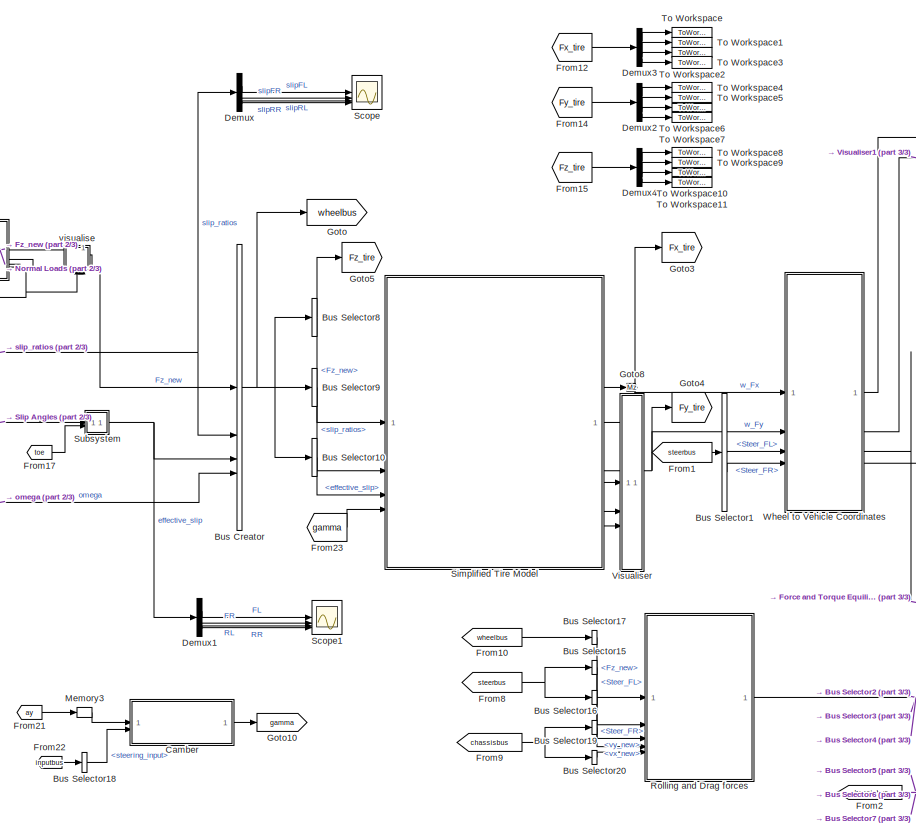
[diagram: root canvas - part 1/3, center side, full height]
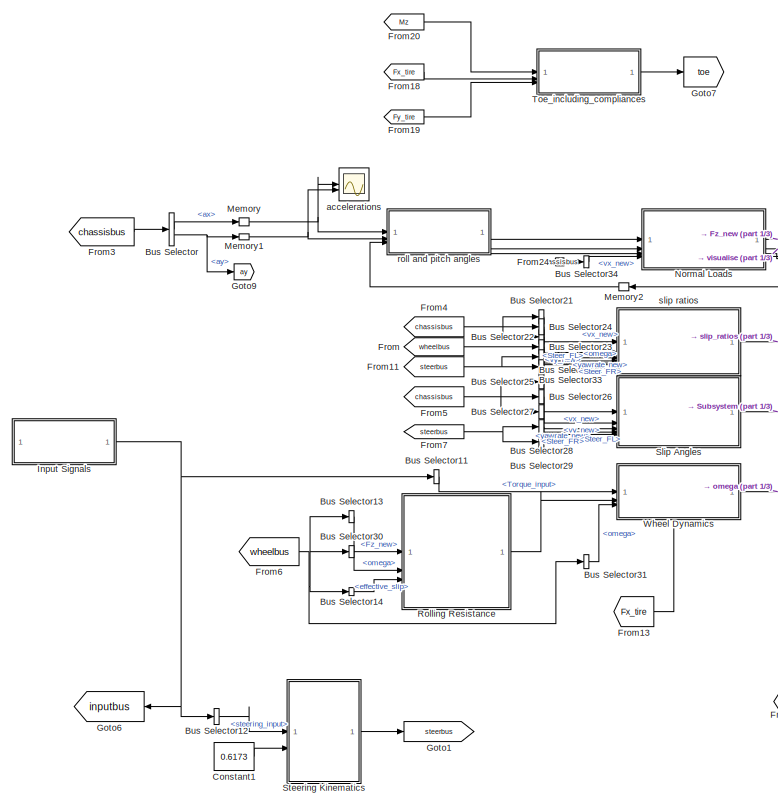
[diagram: root canvas - part 2/3, left side, full height]
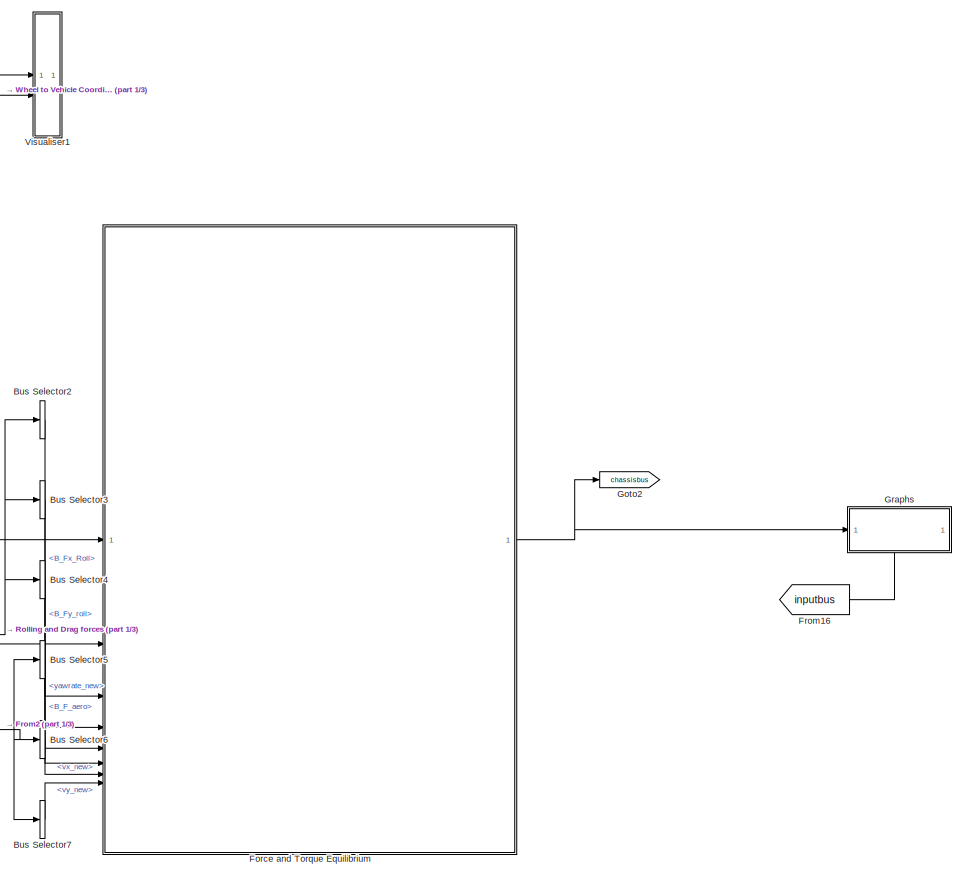
[diagram: root canvas - part 3/3, right side, full height]
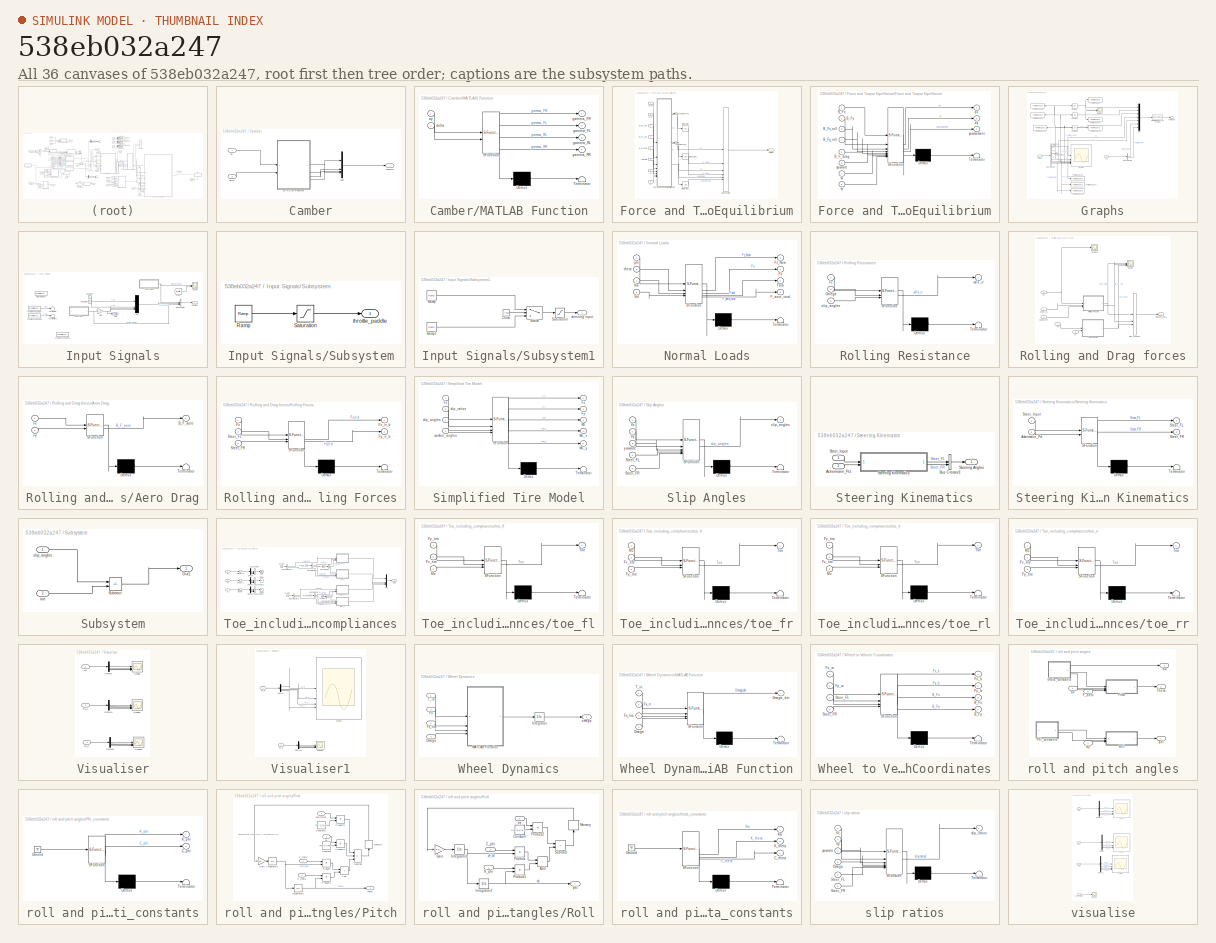
[diagram: thumbnail index - all 36 canvases of the model, root first then tree order]
MODEL slx_538eb032a247
KIND model
CONFIG AbsTol = auto
CONFIG EnableMultiTasking = off
CONFIG FixedStep = auto
CONFIG MaxStep = 0.001
CONFIG MinStep = auto
CONFIG RelTol = 1e-3
CONFIG SampleTimeConstraint = Unconstrained
CONFIG SolverName = ode23tb
CONFIG StartTime = 0.0
CONFIG StopTime = 20
WORKSPACE source: mxarray member
WORKSPACE init_r = 0
WORKSPACE init_vx = 0
WORKSPACE init_vy = 0
BLOCK [BusCreator] Bus Creator
  DisplayOption = bar
  InheritFromInputs = on
  Inputs = 4
BLOCK [BusSelector] Bus Selector
  OutputSignals = ax,ay
BLOCK [BusSelector] Bus Selector1
  OutputSignals = Steer_FL,Steer_FR
BLOCK [BusSelector] Bus Selector10
  OutputSignals = effective_slip
BLOCK [BusSelector] Bus Selector11
  OutputSignals = Torque_input
BLOCK [BusSelector] Bus Selector12
  OutputSignals = steering_input
BLOCK [BusSelector] Bus Selector13
  OutputSignals = Fz_new
BLOCK [BusSelector] Bus Selector14
  OutputSignals = effective_slip
BLOCK [BusSelector] Bus Selector15
  OutputSignals = Steer_FL
BLOCK [BusSelector] Bus Selector16
  OutputSignals = Steer_FR
BLOCK [BusSelector] Bus Selector17
  OutputSignals = Fz_new
BLOCK [BusSelector] Bus Selector18
  OutputSignals = steering_input
BLOCK [BusSelector] Bus Selector19
  OutputSignals = vx_new
BLOCK [BusSelector] Bus Selector2
  OutputSignals = B_Fx_Roll
BLOCK [BusSelector] Bus Selector20
  OutputSignals = vy_new
BLOCK [BusSelector] Bus Selector21
  OutputSignals = vx_new
BLOCK [BusSelector] Bus Selector22
  OutputSignals = yawrate_new
BLOCK [BusSelector] Bus Selector23
  OutputSignals = omega
BLOCK [BusSelector] Bus Selector24
  OutputSignals = vy_new
BLOCK [BusSelector] Bus Selector25
  OutputSignals = vx_new
BLOCK [BusSelector] Bus Selector26
  OutputSignals = vy_new
BLOCK [BusSelector] Bus Selector27
  OutputSignals = yawrate_new
BLOCK [BusSelector] Bus Selector28
  OutputSignals = Steer_FL
BLOCK [BusSelector] Bus Selector29
  OutputSignals = Steer_FR
BLOCK [BusSelector] Bus Selector3
  OutputSignals = B_Fy_roll
BLOCK [BusSelector] Bus Selector30
  OutputSignals = omega
BLOCK [BusSelector] Bus Selector31
  OutputSignals = omega
BLOCK [BusSelector] Bus Selector32
  OutputSignals = Steer_FL
BLOCK [BusSelector] Bus Selector33
  OutputSignals = Steer_FR
BLOCK [BusSelector] Bus Selector34
  OutputSignals = vx_new
BLOCK [BusSelector] Bus Selector4
  OutputSignals = B_F_aero
BLOCK [BusSelector] Bus Selector5
  OutputSignals = yawrate_new
BLOCK [BusSelector] Bus Selector6
  OutputSignals = vx_new
BLOCK [BusSelector] Bus Selector7
  OutputSignals = vy_new
BLOCK [BusSelector] Bus Selector8
  OutputSignals = Fz_new
BLOCK [BusSelector] Bus Selector9
  OutputSignals = slip_ratios
BLOCK [SubSystem] Camber
BLOCK [SubSystem] Camber/MATLAB Function
  ErrorFcn = Stateflow.Translate.translate
  PermitHierarchicalResolution = ExplicitOnly
  SFBlockType = MATLAB Function
  TreatAsAtomicUnit = on
BLOCK [Demux] Camber/MATLAB Function/ Demux 
  Outputs = 1
BLOCK [S-Function] Camber/MATLAB Function/ SFunction 
  EnableBusSupport = off
  FunctionName = sf_sfun
  Parameters = Par
  PortCounts = [2 5]
  SFcnIsStateOwnerBlock = off
  SFunctionDeploymentMode = off
  Tag = Stateflow S-Function 16
BLOCK [Terminator] Camber/MATLAB Function/ Terminator 
BLOCK [Inport] Camber/MATLAB Function/ay
BLOCK [Inport] Camber/MATLAB Function/delta
  Port = 2
BLOCK [Outport] Camber/MATLAB Function/gamma_FL
  Port = 2
BLOCK [Outport] Camber/MATLAB Function/gamma_FR
BLOCK [Outport] Camber/MATLAB Function/gamma_RL
  Port = 3
BLOCK [Outport] Camber/MATLAB Function/gamma_RR
  Port = 4
BLOCK [Mux] Camber/Mux
  DisplayOption = bar
BLOCK [Inport] Camber/ay
BLOCK [Inport] Camber/delta
  Port = 2
BLOCK [Outport] Camber/gamma
BLOCK [Constant] Constant1
  Value = 0.6173
BLOCK [Demux] Demux
BLOCK [Demux] Demux1
BLOCK [Demux] Demux2
  Commented = on
BLOCK [Demux] Demux3
  Commented = on
BLOCK [Demux] Demux4
  Commented = on
BLOCK [SubSystem] Force and Torque Equilibrium
BLOCK [Inport] Force and Torque Equilibrium/B_F_drag
  Port = 5
BLOCK [Inport] Force and Torque Equilibrium/B_Fx
BLOCK [Inport] Force and Torque Equilibrium/B_Fx_roll
  Port = 3
BLOCK [Inport] Force and Torque Equilibrium/B_Fy
  Port = 2
BLOCK [Inport] Force and Torque Equilibrium/B_Fy_roll
  Port = 4
BLOCK [BusCreator] Force and Torque Equilibrium/Bus Creator
  DisplayOption = bar
  InheritFromInputs = on
  Inputs = 6
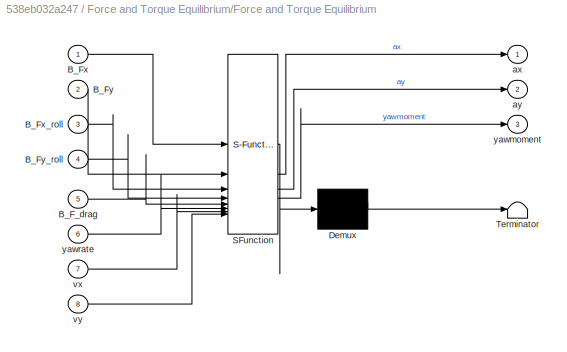
BLOCK [SubSystem] Force and Torque Equilibrium/Force and Torque Equilibrium
  ErrorFcn = Stateflow.Translate.translate
  PermitHierarchicalResolution = ExplicitOnly
  SFBlockType = MATLAB Function
  TreatAsAtomicUnit = on
BLOCK [Demux] Force and Torque Equilibrium/Force and Torque Equilibrium/ Demux 
  Outputs = 1
BLOCK [S-Function] Force and Torque Equilibrium/Force and Torque Equilibrium/ SFunction 
  EnableBusSupport = off
  FunctionName = sf_sfun
  Parameters = Par
  PortCounts = [8 4]
  SFcnIsStateOwnerBlock = off
  SFunctionDeploymentMode = off
  Tag = Stateflow S-Function 10
BLOCK [Terminator] Force and Torque Equilibrium/Force and Torque Equilibrium/ Terminator 
BLOCK [Inport] Force and Torque Equilibrium/Force and Torque Equilibrium/B_F_drag
  Port = 5
BLOCK [Inport] Force and Torque Equilibrium/Force and Torque Equilibrium/B_Fx
BLOCK [Inport] Force and Torque Equilibrium/Force and Torque Equilibrium/B_Fx_roll
  Port = 3
BLOCK [Inport] Force and Torque Equilibrium/Force and Torque Equilibrium/B_Fy
  Port = 2
BLOCK [Inport] Force and Torque Equilibrium/Force and Torque Equilibrium/B_Fy_roll
  Port = 4
BLOCK [Outport] Force and Torque Equilibrium/Force and Torque Equilibrium/ax
BLOCK [Outport] Force and Torque Equilibrium/Force and Torque Equilibrium/ay
  Port = 2
BLOCK [Inport] Force and Torque Equilibrium/Force and Torque Equilibrium/vx
  Port = 7
BLOCK [Inport] Force and Torque Equilibrium/Force and Torque Equilibrium/vy
  Port = 8
BLOCK [Outport] Force and Torque Equilibrium/Force and Torque Equilibrium/yawmoment
  Port = 3
BLOCK [Inport] Force and Torque Equilibrium/Force and Torque Equilibrium/yawrate
  Port = 6
BLOCK [Integrator] Force and Torque Equilibrium/Integrator
  LimitOutput = on
  LowerSaturationLimit = 0
  UpperSaturationLimit = 1e6
BLOCK [Integrator] Force and Torque Equilibrium/Integrator1
  LimitOutput = on
  UpperSaturationLimit = 1e6
BLOCK [Integrator] Force and Torque Equilibrium/Integrator2
  LimitOutput = on
  UpperSaturationLimit = 1e6
BLOCK [Outport] Force and Torque Equilibrium/OutBus
BLOCK [TransferFcn] Force and Torque Equilibrium/Transfer Fcn1
  Denominator = [0.0133 1]
BLOCK [TransferFcn] Force and Torque Equilibrium/Transfer Fcn2
  Denominator = [0.0133 1]
BLOCK [Inport] Force and Torque Equilibrium/vx
  Port = 7
BLOCK [Inport] Force and Torque Equilibrium/vy
  Port = 8
BLOCK [Inport] Force and Torque Equilibrium/yawrate
  Port = 6
BLOCK [From] From
  GotoTag = wheelbus
BLOCK [From] From1
  GotoTag = steerbus
BLOCK [From] From10
  GotoTag = wheelbus
BLOCK [From] From11
  GotoTag = steerbus
BLOCK [From] From12
  Commented = on
  GotoTag = Fx_tire
BLOCK [From] From13
  GotoTag = Fx_tire
BLOCK [From] From14
  Commented = on
  GotoTag = Fy_tire
BLOCK [From] From15
  Commented = on
  GotoTag = Fz_tire
BLOCK [From] From16
  GotoTag = inputbus
BLOCK [From] From17
  GotoTag = toe
BLOCK [From] From18
  GotoTag = Fx_tire
BLOCK [From] From19
  GotoTag = Fy_tire
BLOCK [From] From2
  GotoTag = chassisbus
BLOCK [From] From20
  GotoTag = Mz
BLOCK [From] From21
  GotoTag = ay
BLOCK [From] From22
  GotoTag = inputbus
BLOCK [From] From23
  GotoTag = gamma
BLOCK [From] From24
  GotoTag = chassisbus
BLOCK [From] From3
  GotoTag = chassisbus
BLOCK [From] From4
  GotoTag = chassisbus
BLOCK [From] From5
  GotoTag = chassisbus
BLOCK [From] From6
  GotoTag = wheelbus
BLOCK [From] From7
  GotoTag = steerbus
BLOCK [From] From8
  GotoTag = steerbus
BLOCK [From] From9
  GotoTag = chassisbus
BLOCK [Goto] Goto
  GotoTag = wheelbus
BLOCK [Goto] Goto1
  GotoTag = steerbus
BLOCK [Goto] Goto10
  GotoTag = gamma
BLOCK [Goto] Goto2
  GotoTag = chassisbus
BLOCK [Goto] Goto3
  GotoTag = Fx_tire
BLOCK [Goto] Goto4
  GotoTag = Fy_tire
BLOCK [Goto] Goto5
  Commented = on
  GotoTag = Fz_tire
BLOCK [Goto] Goto6
  GotoTag = inputbus
BLOCK [Goto] Goto7
  GotoTag = toe
BLOCK [Goto] Goto8
  GotoTag = Mz
BLOCK [Goto] Goto9
  GotoTag = ay
BLOCK [SubSystem] Graphs
  PortSchema = {"entries":[{"content":{"sides":[{"content":{"connectorIds":["In1"]},"type":"ConnectorPlacement.EquallySpacedRectSide","uuid":"0d7f1a6c-503e-4c9f-90e9-70f717dd7dfc"},{"content":{"side":"RIGHT"},"type":"ConnectorPlacement.EquallySpacedRectSide","uuid":"62097468-b066-4e29-8f99-7427d14bee77"},{"content":{"side":"TOP"},"type":"ConnectorPlacement.EquallySpacedRectSide","uuid":"2a3f381e-a201-4804-99b7-7...<+347ch>
BLOCK [BusSelector] Graphs/Bus Selector
  OutputSignals = ax,vx_new,ay,vy_new,yawmoment,yawrate_new
BLOCK [BusSelector] Graphs/Bus Selector1
  Commented = on
  OutputSignals = Steer_input,Throttle_input
BLOCK [Inport] Graphs/In2
  Port = 2
BLOCK [Integrator] Graphs/Integrator
BLOCK [Integrator] Graphs/Integrator1
BLOCK [Integrator] Graphs/Integrator2
BLOCK [MATLABFcn] Graphs/Interpreted MATLAB Function
  Commented = on
  MATLABFcn = visualize_vehicle_live
BLOCK [Mux] Graphs/Mux
  Commented = on
  DisplayOption = bar
  Inputs = 7
BLOCK [Inport] Graphs/OutBus
BLOCK [Scope] Graphs/Scope
  ActiveDisplayYMaximum = 12.998606897592927
  ActiveDisplayYMinimum = -1.8391798427639636
  DataLoggingVariableName = ScopeData2
  Floating = off
  GraphicalSettings = {"Style":{"BackgroundColor":[0.12941176470588237,0.12941176470588237,0.12941176470588237],"AxesColor":[0.07058823529411765,0.07058823529411765,0.07058823529411765],"LabelsColor":[0.8509803921568627,0.8509803921568627,0.8509803921568627],"PreserveColors":false,"Visible":[true,true,true,true,true,true],"LineStyle":["-","-","-","-","-","-"],"LineWidth":[1.5,1.5,1.5,1.5,1.5,1.5],"BarWidth":[0.9,0.9,0....<+4378ch>
  LayoutDimensionsString = [3,2]
  MultipleDisplayCache = [{"MaxYLimMag":12.998606897592927,"MaxYLimReal":12.998606897592927,"MinYLimMag":0,"MinYLimReal":-1.8391798427639636,"PlotAsMagnitudePhase":false,"ShowGrid":true,"ShowLegend":false,"Title":"%<SignalLabel>","YLabel":""},{"MaxYLimMag":99.745423109986589,"MaxYLimReal":99.745423109986589,"MinYLimMag":0,"MinYLimReal":-11.082824789998508,"PlotAsMagnitudePhase":false,"ShowGrid":true,"ShowLegend":false,"Ti...<+913ch>
  NumInputPorts = 6
  ScopeFrameLocation = window
  WasSavedAsWebScope = on
  WindowPosition = [0.000000,12.000000,1536.000000,841.000000,]
BLOCK [Scope] Graphs/Scope1
  ActiveDisplayYMaximum = 6059.5111082990607
  ActiveDisplayYMinimum = -673.27901203322881
  DataLoggingVariableName = ScopeData7
  Floating = off
  GraphicalSettings = {"Style":{"BackgroundColor":[0.12941176470588237,0.12941176470588237,0.12941176470588237],"AxesColor":[0.07058823529411765,0.07058823529411765,0.07058823529411765],"LabelsColor":[0.8509803921568627,0.8509803921568627,0.8509803921568627],"PreserveColors":false,"Visible":[true,true],"LineStyle":["-","-"],"LineWidth":[1.5,1.5],"BarWidth":[0.9,0.9],"LineColor":["auto","auto"],"LineFaceAlpha":[1,1],"Li...<+2397ch>
  LayoutDimensionsString = [2,1]
  MultipleDisplayCache = [{"MaxYLimMag":6059.5111082990607,"MaxYLimReal":6059.5111082990607,"MinYLimMag":0,"MinYLimReal":-673.27901203322881,"PlotAsMagnitudePhase":false,"ShowGrid":true,"ShowLegend":false,"Title":"%<SignalLabel>","YLabel":""},{"MaxYLimMag":7.2877532860218244,"MaxYLimReal":3.5670698591483361,"MinYLimMag":0,"MinYLimReal":-7.2877532860218244,"PlotAsMagnitudePhase":false,"ShowGrid":true,"ShowLegend":false,"Ti...<+35ch>
  NumInputPorts = 2
  ScopeFrameLocation = window
  WasSavedAsWebScope = on
  WindowPosition = [1.000000,1.000000,1707.000000,1044.000000,]
BLOCK [Terminator] Graphs/Terminator
  Commented = on
BLOCK [ToWorkspace] Graphs/To Workspace
  Commented = on
  FixptAsFi = on
  MaxDataPoints = inf
  SampleTime = -1
  SaveFormat = Timeseries
  VariableName = disp_x
BLOCK [ToWorkspace] Graphs/To Workspace1
  Commented = on
  FixptAsFi = on
  MaxDataPoints = inf
  SampleTime = -1
  SaveFormat = Timeseries
  VariableName = disp_y
BLOCK [ToWorkspace] Graphs/To Workspace2
  Commented = on
  FixptAsFi = on
  MaxDataPoints = inf
  SampleTime = -1
  SaveFormat = Timeseries
  VariableName = disp_psi
BLOCK [ToWorkspace] Graphs/To Workspace3
  Commented = on
  FixptAsFi = on
  MaxDataPoints = inf
  SampleTime = -1
  SaveFormat = Timeseries
  VariableName = ax
BLOCK [ToWorkspace] Graphs/To Workspace4
  Commented = on
  FixptAsFi = on
  MaxDataPoints = inf
  SampleTime = -1
  SaveFormat = Timeseries
  VariableName = ay
BLOCK [ToWorkspace] Graphs/To Workspace5
  Commented = on
  FixptAsFi = on
  MaxDataPoints = inf
  SampleTime = -1
  SaveFormat = Timeseries
  VariableName = yawmoment
BLOCK [ToWorkspace] Graphs/To Workspace6
  Commented = on
  FixptAsFi = on
  MaxDataPoints = inf
  SampleTime = -1
  SaveFormat = Timeseries
  VariableName = vx
BLOCK [ToWorkspace] Graphs/To Workspace7
  Commented = on
  FixptAsFi = on
  MaxDataPoints = inf
  SampleTime = -1
  SaveFormat = Timeseries
  VariableName = vy
BLOCK [ToWorkspace] Graphs/To Workspace8
  Commented = on
  FixptAsFi = on
  MaxDataPoints = inf
  SampleTime = -1
  SaveFormat = Timeseries
  VariableName = yawrate
BLOCK [TransferFcn] Graphs/Transfer Fcn
  Denominator = [0.01 1]
BLOCK [TransferFcn] Graphs/Transfer Fcn1
  Denominator = [0.01 1]
BLOCK [SubSystem] Input Signals
BLOCK [BusCreator] Input Signals/Bus Creator
  DisplayOption = bar
  InheritFromInputs = on
  Inputs = 3
BLOCK [Constant] Input Signals/Constant
  Value = 0
BLOCK [Constant] Input Signals/Constant1
  Value = 0
BLOCK [From] Input Signals/From
  GotoTag = throttle
BLOCK [FromWorkspace] Input Signals/From Workspace
  Commented = on
  VariableName = SimInput_TorqueRL
BLOCK [FromWorkspace] Input Signals/From Workspace1
  Commented = on
  VariableName = SimInput_TorqueRR
BLOCK [FromWorkspace] Input Signals/From Workspace2
  Commented = on
  VariableName = throttle_ts
BLOCK [Gain] Input Signals/Gain
  Gain = 29.1*10.05
BLOCK [Goto] Input Signals/Goto
  GotoTag = throttle
BLOCK [Outport] Input Signals/InputBus
BLOCK [Mux] Input Signals/Mux
  DisplayOption = bar
BLOCK [Scope] Input Signals/Scope
  ActiveDisplayYMaximum = 0.49087385212340517
  ActiveDisplayYMinimum = -0.054541539124822784
  DataLoggingVariableName = ScopeData8
  Floating = off
  GraphicalSettings = {"Style":{"BackgroundColor":[0.12941176470588237,0.12941176470588237,0.12941176470588237],"AxesColor":[0.07058823529411765,0.07058823529411765,0.07058823529411765],"LabelsColor":[0.8509803921568627,0.8509803921568627,0.8509803921568627],"PreserveColors":false,"Visible":[true,true],"LineStyle":["-","-"],"LineWidth":[1.5,1.5],"BarWidth":[0.9,0.9],"LineColor":["auto","auto"],"LineFaceAlpha":[1,1],"Li...<+2422ch>
  LayoutDimensionsString = [1,2]
  MultipleDisplayCache = [{"MaxYLimMag":0.49087385212340517,"MaxYLimReal":0.49087385212340517,"MinYLimMag":0,"MinYLimReal":-0.054541539124822784,"PlotAsMagnitudePhase":false,"ShowGrid":true,"ShowLegend":false,"Title":"%<SignalLabel>","YLabel":""},{"MaxYLimMag":329.01187500000003,"MaxYLimReal":329.01187500000003,"MinYLimMag":0,"MinYLimReal":-36.556875,"PlotAsMagnitudePhase":false,"ShowGrid":true,"ShowLegend":false,"Title":...<+30ch>
  NumInputPorts = 2
  ScopeFrameLocation = window
  WasSavedAsWebScope = on
  WindowPosition = [398.000000,279.000000,741.000000,306.000000,]
BLOCK [FromWorkspace] Input Signals/Steering Input
  Commented = on
  VariableName = steer_ts
BLOCK [SubSystem] Input Signals/Subsystem
BLOCK [Reference] Input Signals/Subsystem/Ramp  REF=simulink/Sources/Ramp
  SourceBlock = simulink/Sources/Ramp
  SourceType = Ramp
BLOCK [Saturate] Input Signals/Subsystem/Saturation
  LowerLimit = 0
  UpperLimit = 1
BLOCK [Outport] Input Signals/Subsystem/throttle_paddle
BLOCK [SubSystem] Input Signals/Subsystem1
BLOCK [Clock] Input Signals/Subsystem1/Clock
BLOCK [Reference] Input Signals/Subsystem1/Ramp  REF=simulink/Sources/Ramp
  SourceBlock = simulink/Sources/Ramp
  SourceType = Ramp
BLOCK [Reference] Input Signals/Subsystem1/Ramp1  REF=simulink/Sources/Ramp
  SourceBlock = simulink/Sources/Ramp
  SourceType = Ramp
BLOCK [Saturate] Input Signals/Subsystem1/Saturation
  LowerLimit = 0
  UpperLimit = 25*pi/180
BLOCK [Switch] Input Signals/Subsystem1/Switch
  Criteria = u2 > Threshold
  InputSameDT = off
  SaturateOnIntegerOverflow = off
  Threshold = 10
BLOCK [Outport] Input Signals/Subsystem1/steeiring input
BLOCK [Terminator] Input Signals/Terminator
BLOCK [Terminator] Input Signals/Terminator1
BLOCK [Memory] Memory
  InheritSampleTime = on
BLOCK [Memory] Memory1
  InheritSampleTime = on
BLOCK [Memory] Memory2
  InheritSampleTime = on
BLOCK [Memory] Memory3
BLOCK [SubSystem] Normal Loads
  ErrorFcn = Stateflow.Translate.translate
  NameLocation = top
  PermitHierarchicalResolution = ExplicitOnly
  SFBlockType = MATLAB Function
  TreatAsAtomicUnit = on
BLOCK [Demux] Normal Loads/ Demux 
  Outputs = 1
BLOCK [S-Function] Normal Loads/ SFunction 
  EnableBusSupport = off
  FunctionName = sf_sfun
  Parameters = Par
  PortCounts = [4 5]
  SFcnIsStateOwnerBlock = off
  SFunctionDeploymentMode = off
  Tag = Stateflow S-Function 1
BLOCK [Terminator] Normal Loads/ Terminator 
BLOCK [Outport] Normal Loads/F_aero_total
  Port = 4
BLOCK [Outport] Normal Loads/Farb
  Port = 3
BLOCK [Outport] Normal Loads/Fs
  Port = 2
BLOCK [Outport] Normal Loads/Fz_New
BLOCK [Inport] Normal Loads/Kw
  Port = 3
BLOCK [Inport] Normal Loads/Vel
  Port = 4
BLOCK [Inport] Normal Loads/phi
BLOCK [Inport] Normal Loads/theta
  Port = 2
BLOCK [SubSystem] Rolling Resistance
  ErrorFcn = Stateflow.Translate.translate
  PermitHierarchicalResolution = ExplicitOnly
  SFBlockType = MATLAB Function
  TreatAsAtomicUnit = on
BLOCK [Demux] Rolling Resistance/ Demux 
  Outputs = 1
BLOCK [S-Function] Rolling Resistance/ SFunction 
  EnableBusSupport = off
  FunctionName = sf_sfun
  Parameters = Par
  PortCounts = [3 2]
  SFcnIsStateOwnerBlock = off
  SFunctionDeploymentMode = off
  Tag = Stateflow S-Function 8
BLOCK [Terminator] Rolling Resistance/ Terminator 
BLOCK [Inport] Rolling Resistance/Fz
BLOCK [Inport] Rolling Resistance/Omega
  Port = 2
BLOCK [Inport] Rolling Resistance/slip_angles
  Port = 3
BLOCK [Outport] Rolling Resistance/wFx_rr
BLOCK [SubSystem] Rolling and Drag forces
BLOCK [SubSystem] Rolling and Drag forces/Aero Drag
  ErrorFcn = Stateflow.Translate.translate
  PermitHierarchicalResolution = ExplicitOnly
  SFBlockType = MATLAB Function
  TreatAsAtomicUnit = on
BLOCK [Demux] Rolling and Drag forces/Aero Drag/ Demux 
  Outputs = 1
BLOCK [S-Function] Rolling and Drag forces/Aero Drag/ SFunction 
  EnableBusSupport = off
  FunctionName = sf_sfun
  Parameters = Par
  PortCounts = [2 2]
  SFcnIsStateOwnerBlock = off
  SFunctionDeploymentMode = off
  Tag = Stateflow S-Function 11
BLOCK [Terminator] Rolling and Drag forces/Aero Drag/ Terminator 
BLOCK [Outport] Rolling and Drag forces/Aero Drag/B_F_aero
BLOCK [Inport] Rolling and Drag forces/Aero Drag/vx
BLOCK [Inport] Rolling and Drag forces/Aero Drag/vy
  Port = 2
BLOCK [BusCreator] Rolling and Drag forces/Bus Creator
  DisplayOption = bar
  InheritFromInputs = on
  Inputs = 3
BLOCK [Inport] Rolling and Drag forces/Fz
BLOCK [Outport] Rolling and Drag forces/Roll_and_aero
  NameLocation = right
BLOCK [SubSystem] Rolling and Drag forces/Rolling Forces
  ErrorFcn = Stateflow.Translate.translate
  PermitHierarchicalResolution = ExplicitOnly
  SFBlockType = MATLAB Function
  TreatAsAtomicUnit = on
BLOCK [Demux] Rolling and Drag forces/Rolling Forces/ Demux 
  Outputs = 1
BLOCK [S-Function] Rolling and Drag forces/Rolling Forces/ SFunction 
  EnableBusSupport = off
  FunctionName = sf_sfun
  Parameters = Par
  PortCounts = [3 3]
  SFcnIsStateOwnerBlock = off
  SFunctionDeploymentMode = off
  Tag = Stateflow S-Function 9
BLOCK [Terminator] Rolling and Drag forces/Rolling Forces/ Terminator 
BLOCK [Outport] Rolling and Drag forces/Rolling Forces/Fx_rr_b
BLOCK [Outport] Rolling and Drag forces/Rolling Forces/Fy_rr_b
  Port = 2
BLOCK [Inport] Rolling and Drag forces/Rolling Forces/Fz
BLOCK [Inport] Rolling and Drag forces/Rolling Forces/Steer_FL
  Port = 2
BLOCK [Inport] Rolling and Drag forces/Rolling Forces/Steer_FR
  Port = 3
BLOCK [Scope] Rolling and Drag forces/Scope
  ActiveDisplayYMaximum = 8.7114722532307756
  ActiveDisplayYMinimum = -84.954759082659436
  DataLoggingVariableName = ScopeData5
  Floating = off
  GraphicalSettings = {"AxesScalingProperties":{"AlignXAxis":"Center","AlignYAxis":"Center","AutoScaleXAxisLimits":false,"AxesScaling":"Manual","AxesScalingNumUpdates":10,"ExpandOnly":true,"ScaleAxesLimitsAtStop":false,"XAxisDataRange":100,"YAxisDataRange":80},"DisplayProperties":{"ColorOrder":["auto","auto","auto","auto","auto","auto","auto","auto","auto","auto","auto","auto","auto","auto","auto","auto","auto","auto",...<+3975ch>
  LayoutDimensionsString = [2,2]
  MultipleDisplayCache = [{"MaxYLimMag":84.954759082659436,"MaxYLimReal":8.7114722532307756,"MinYLimMag":0,"MinYLimReal":-84.954759082659436,"PlotAsMagnitudePhase":false,"ShowGrid":true,"ShowLegend":false,"Title":"%<SignalLabel>","YLabel":""},{"MaxYLimMag":1,"MaxYLimReal":1,"MinYLimMag":0,"MinYLimReal":-1,"PlotAsMagnitudePhase":false,"ShowGrid":true,"ShowLegend":false,"Title":"%<SignalLabel>","YLabel":""},{"MaxYLimMag":0....<+407ch>
  NumInputPorts = 3
  ScopeFrameLocation = window
  WasSavedAsWebScope = on
  WindowPosition = [170.000000,430.000000,560.000000,420.000000,]
BLOCK [Scope] Rolling and Drag forces/Scope1
  ActiveDisplayYMaximum = 1
  ActiveDisplayYMinimum = -1
  DataLoggingVariableName = ScopeData6
  Floating = off
  GraphicalSettings = {"Style":{"BackgroundColor":[0.12941176470588237,0.12941176470588237,0.12941176470588237],"AxesColor":[0.07058823529411765,0.07058823529411765,0.07058823529411765],"LabelsColor":[0.8509803921568627,0.8509803921568627,0.8509803921568627],"PreserveColors":false,"Visible":[true,true,true,true],"LineStyle":["-","-","-","-"],"LineWidth":[1.5,1.5,1.5,1.5],"BarWidth":[0.9,0.9,0.9,0.9],"LineColor":["auto"...<+2223ch>
  MultipleDisplayCache = [{"MaxYLimMag":1,"MaxYLimReal":1,"MinYLimMag":0,"MinYLimReal":-1,"PlotAsMagnitudePhase":false,"ShowGrid":true,"ShowLegend":false,"Title":"%<SignalLabel>","YLabel":""}]
  NumInputPorts = 1
  ScopeFrameLocation = window
  WasSavedAsWebScope = on
  WindowPosition = [573.000000,323.000000,560.000000,420.000000,]
BLOCK [Inport] Rolling and Drag forces/Steer_FL
  Port = 2
BLOCK [Inport] Rolling and Drag forces/Steer_FR
  Port = 3
BLOCK [Inport] Rolling and Drag forces/vx
  Port = 4
BLOCK [Inport] Rolling and Drag forces/vy
  Port = 5
BLOCK [Scope] Scope
  ActiveDisplayYMaximum = 0.049451714787091476
  ActiveDisplayYMinimum = -0.00902343797023162
  DataLoggingVariableName = ScopeData3
  Floating = off
  GraphicalSettings = {"AxesScalingProperties":{"AlignXAxis":"Center","AlignYAxis":"Center","AutoScaleXAxisLimits":false,"AxesScaling":"Manual","AxesScalingNumUpdates":10,"ExpandOnly":true,"ScaleAxesLimitsAtStop":false,"XAxisDataRange":100,"YAxisDataRange":80},"Cursors":{"CursorChannels":["auto","auto"],"Enabled":true,"Horizontal":true,"LinkToWaveform":true,"LockSpacing":false,"ShowMeasurement":true,"ShowPanel":false,"...<+3817ch>
  LayoutDimensionsString = [2,2]
  MultipleDisplayCache = [{"MaxYLimMag":0.021043595691866902,"MaxYLimReal":0.049451714787091476,"MinYLimMag":0,"MinYLimReal":-0.00902343797023162,"PlotAsMagnitudePhase":false,"ShowGrid":true,"ShowLegend":false,"Title":"%<SignalLabel>","YLabel":""},{"MaxYLimMag":0.037404685505436547,"MaxYLimReal":0.034239419741059755,"MinYLimMag":0,"MinYLimReal":0.0016754754721341747,"PlotAsMagnitudePhase":false,"ShowGrid":true,"ShowLegend...<+488ch>
  NumInputPorts = 4
  ScopeFrameLocation = window
  WasSavedAsWebScope = on
  WindowPosition = [573.000000,323.000000,560.000000,420.000000,]
BLOCK [Scope] Scope1
  ActiveDisplayYMaximum = 0.53547210256097
  ActiveDisplayYMinimum = -0.4830772017663526
  DataLoggingVariableName = ScopeData4
  Floating = off
  GraphicalSettings = {"Style":{"BackgroundColor":[0.12941176470588237,0.12941176470588237,0.12941176470588237],"AxesColor":[0.07058823529411765,0.07058823529411765,0.07058823529411765],"LabelsColor":[0.8509803921568627,0.8509803921568627,0.8509803921568627],"PreserveColors":false,"Visible":[true,true,true,true],"LineStyle":["-","-","-","-"],"LineWidth":[1.5,1.5,1.5,1.5],"BarWidth":[0.9,0.9,0.9,0.9],"LineColor":[[1,0.9...<+3598ch>
  LayoutDimensionsString = [2,2]
  MultipleDisplayCache = [{"MaxYLimMag":0.45206072706158951,"MaxYLimReal":0.53547210256097,"MinYLimMag":0,"MinYLimReal":-0.4830772017663526,"PlotAsMagnitudePhase":false,"ShowGrid":true,"ShowLegend":false,"Title":"%<SignalLabel>","YLabel":""},{"MaxYLimMag":0.46228858158597941,"MaxYLimReal":0.39377248477899635,"MinYLimMag":0,"MinYLimReal":-0.46228858158597941,"PlotAsMagnitudePhase":false,"ShowGrid":true,"ShowLegend":false,"...<+477ch>
  NumInputPorts = 4
  ScopeFrameLocation = window
  WasSavedAsWebScope = on
  WindowPosition = [971.000000,-17.000000,562.000000,414.000000,]
BLOCK [SubSystem] Simplified Tire Model
  ErrorFcn = Stateflow.Translate.translate
  PermitHierarchicalResolution = ExplicitOnly
  SFBlockType = MATLAB Function
  TreatAsAtomicUnit = on
BLOCK [Demux] Simplified Tire Model/ Demux 
  Outputs = 1
BLOCK [S-Function] Simplified Tire Model/ SFunction 
  EnableBusSupport = off
  FunctionName = sf_sfun
  Parameters = Par,TireData
  PortCounts = [4 6]
  SFcnIsStateOwnerBlock = off
  SFunctionDeploymentMode = off
  Tag = Stateflow S-Function 2
BLOCK [Terminator] Simplified Tire Model/ Terminator 
BLOCK [Outport] Simplified Tire Model/Fx
BLOCK [Outport] Simplified Tire Model/Fy
  Port = 2
BLOCK [Inport] Simplified Tire Model/Fz
BLOCK [Outport] Simplified Tire Model/Mu_x
  Port = 4
BLOCK [Outport] Simplified Tire Model/Mu_y
  Port = 5
BLOCK [Outport] Simplified Tire Model/Mz
  Port = 3
BLOCK [Inport] Simplified Tire Model/camber_angles
  Port = 4
BLOCK [Inport] Simplified Tire Model/slip_angles
  Port = 3
BLOCK [Inport] Simplified Tire Model/slip_ratios
  Port = 2
BLOCK [SubSystem] Slip Angles
  ErrorFcn = Stateflow.Translate.translate
  PermitHierarchicalResolution = ExplicitOnly
  SFBlockType = MATLAB Function
  TreatAsAtomicUnit = on
BLOCK [Demux] Slip Angles/ Demux 
  Outputs = 1
BLOCK [S-Function] Slip Angles/ SFunction 
  EnableBusSupport = off
  FunctionName = sf_sfun
  Parameters = Par
  PortCounts = [5 2]
  SFcnIsStateOwnerBlock = off
  SFunctionDeploymentMode = off
  Tag = Stateflow S-Function 4
BLOCK [Terminator] Slip Angles/ Terminator 
BLOCK [Inport] Slip Angles/Steer_FL
  Port = 4
BLOCK [Inport] Slip Angles/Steer_FR
  Port = 5
BLOCK [Inport] Slip Angles/Vx
BLOCK [Inport] Slip Angles/Vy
  Port = 2
BLOCK [Outport] Slip Angles/slip_angles
BLOCK [Inport] Slip Angles/yawrate
  Port = 3
BLOCK [SubSystem] Steering Kinematics
BLOCK [Inport] Steering Kinematics/Ackermann_Pct
  NameLocation = left
  Port = 2
BLOCK [BusCreator] Steering Kinematics/Bus Creator1
  DisplayOption = bar
  InheritFromInputs = on
  Inputs = 2
BLOCK [Inport] Steering Kinematics/Steer_Input
  NameLocation = left
BLOCK [Outport] Steering Kinematics/Steering Angles
BLOCK [SubSystem] Steering Kinematics/Steering Kinematics
  ErrorFcn = Stateflow.Translate.translate
  PermitHierarchicalResolution = ExplicitOnly
  SFBlockType = MATLAB Function
  TreatAsAtomicUnit = on
BLOCK [Demux] Steering Kinematics/Steering Kinematics/ Demux 
  Outputs = 1
BLOCK [S-Function] Steering Kinematics/Steering Kinematics/ SFunction 
  EnableBusSupport = off
  FunctionName = sf_sfun
  Parameters = Par
  PortCounts = [2 3]
  SFcnIsStateOwnerBlock = off
  SFunctionDeploymentMode = off
  Tag = Stateflow S-Function 6
BLOCK [Terminator] Steering Kinematics/Steering Kinematics/ Terminator 
BLOCK [Inport] Steering Kinematics/Steering Kinematics/Ackermann_Pct
  Port = 2
BLOCK [Outport] Steering Kinematics/Steering Kinematics/Steer_FL
BLOCK [Outport] Steering Kinematics/Steering Kinematics/Steer_FR
  Port = 2
BLOCK [Inport] Steering Kinematics/Steering Kinematics/Steer_Input
BLOCK [SubSystem] Subsystem
BLOCK [Outport] Subsystem/Out1
BLOCK [Sum] Subsystem/Subtract
  IconShape = rectangular
  Inputs = +-
BLOCK [Inport] Subsystem/slip_angles
BLOCK [Inport] Subsystem/toe
  Port = 2
BLOCK [ToWorkspace] To Workspace
  Commented = on
  FixptAsFi = on
  MaxDataPoints = inf
  SampleTime = -1
  SaveFormat = Timeseries
  VariableName = Fx_FL
BLOCK [ToWorkspace] To Workspace1
  Commented = on
  FixptAsFi = on
  MaxDataPoints = inf
  SampleTime = -1
  SaveFormat = Timeseries
  VariableName = Fx_FR
BLOCK [ToWorkspace] To Workspace10
  Commented = on
  FixptAsFi = on
  MaxDataPoints = inf
  SampleTime = -1
  SaveFormat = Timeseries
  VariableName = Fz_RL
BLOCK [ToWorkspace] To Workspace11
  Commented = on
  FixptAsFi = on
  MaxDataPoints = inf
  SampleTime = -1
  SaveFormat = Timeseries
  VariableName = Fz_RR
BLOCK [ToWorkspace] To Workspace2
  Commented = on
  FixptAsFi = on
  MaxDataPoints = inf
  SampleTime = -1
  SaveFormat = Timeseries
  VariableName = Fx_RL
BLOCK [ToWorkspace] To Workspace3
  Commented = on
  FixptAsFi = on
  MaxDataPoints = inf
  SampleTime = -1
  SaveFormat = Timeseries
  VariableName = Fx_RR
BLOCK [ToWorkspace] To Workspace4
  Commented = on
  FixptAsFi = on
  MaxDataPoints = inf
  SampleTime = -1
  SaveFormat = Timeseries
  VariableName = Fy_FL
BLOCK [ToWorkspace] To Workspace5
  Commented = on
  FixptAsFi = on
  MaxDataPoints = inf
  SampleTime = -1
  SaveFormat = Timeseries
  VariableName = Fy_FR
BLOCK [ToWorkspace] To Workspace6
  Commented = on
  FixptAsFi = on
  MaxDataPoints = inf
  SampleTime = -1
  SaveFormat = Timeseries
  VariableName = Fy_RL
BLOCK [ToWorkspace] To Workspace7
  Commented = on
  FixptAsFi = on
  MaxDataPoints = inf
  SampleTime = -1
  SaveFormat = Timeseries
  VariableName = Fy_RR
BLOCK [ToWorkspace] To Workspace8
  Commented = on
  FixptAsFi = on
  MaxDataPoints = inf
  SampleTime = -1
  SaveFormat = Timeseries
  VariableName = Fz_FL
BLOCK [ToWorkspace] To Workspace9
  Commented = on
  FixptAsFi = on
  MaxDataPoints = inf
  SampleTime = -1
  SaveFormat = Timeseries
  VariableName = Fz_FR
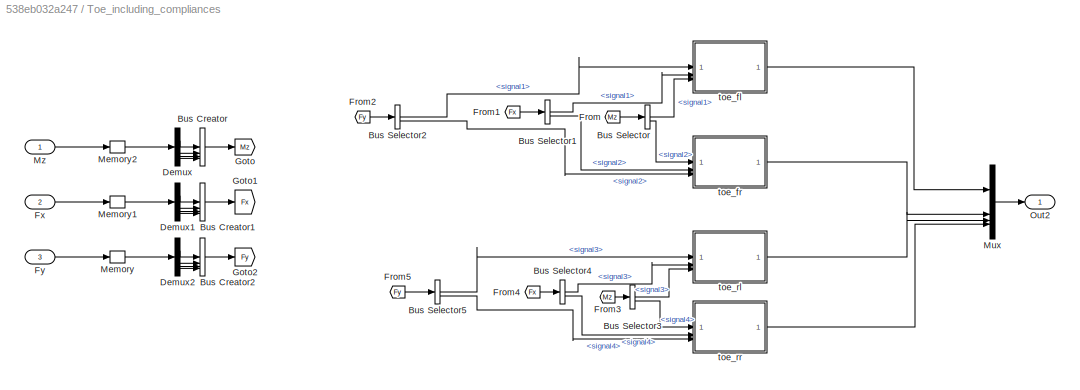
BLOCK [SubSystem] Toe_including_compliances
BLOCK [BusCreator] Toe_including_compliances/Bus Creator
  DisplayOption = bar
  InheritFromInputs = on
  Inputs = 4
BLOCK [BusCreator] Toe_including_compliances/Bus Creator1
  DisplayOption = bar
  InheritFromInputs = on
  Inputs = 4
BLOCK [BusCreator] Toe_including_compliances/Bus Creator2
  DisplayOption = bar
  InheritFromInputs = on
  Inputs = 4
BLOCK [BusSelector] Toe_including_compliances/Bus Selector
  OutputSignals = signal1,signal2
BLOCK [BusSelector] Toe_including_compliances/Bus Selector1
  OutputSignals = signal1,signal2
BLOCK [BusSelector] Toe_including_compliances/Bus Selector2
  OutputSignals = signal1,signal2
BLOCK [BusSelector] Toe_including_compliances/Bus Selector3
  OutputSignals = signal3,signal4
BLOCK [BusSelector] Toe_including_compliances/Bus Selector4
  OutputSignals = signal3,signal4
BLOCK [BusSelector] Toe_including_compliances/Bus Selector5
  OutputSignals = signal3,signal4
BLOCK [Demux] Toe_including_compliances/Demux
BLOCK [Demux] Toe_including_compliances/Demux1
BLOCK [Demux] Toe_including_compliances/Demux2
BLOCK [From] Toe_including_compliances/From
  GotoTag = Mz
BLOCK [From] Toe_including_compliances/From1
  GotoTag = Fx
BLOCK [From] Toe_including_compliances/From2
  GotoTag = Fy
BLOCK [From] Toe_including_compliances/From3
  GotoTag = Mz
BLOCK [From] Toe_including_compliances/From4
  GotoTag = Fx
BLOCK [From] Toe_including_compliances/From5
  GotoTag = Fy
BLOCK [Inport] Toe_including_compliances/Fx
  Port = 2
BLOCK [Inport] Toe_including_compliances/Fy
  Port = 3
BLOCK [Goto] Toe_including_compliances/Goto
  GotoTag = Mz
BLOCK [Goto] Toe_including_compliances/Goto1
  GotoTag = Fx
BLOCK [Goto] Toe_including_compliances/Goto2
  GotoTag = Fy
BLOCK [Memory] Toe_including_compliances/Memory
BLOCK [Memory] Toe_including_compliances/Memory1
BLOCK [Memory] Toe_including_compliances/Memory2
BLOCK [Mux] Toe_including_compliances/Mux
  DisplayOption = bar
BLOCK [Inport] Toe_including_compliances/Mz
BLOCK [Outport] Toe_including_compliances/Out2
BLOCK [SubSystem] Toe_including_compliances/toe_fl
  ErrorFcn = Stateflow.Translate.translate
  PermitHierarchicalResolution = ExplicitOnly
  SFBlockType = MATLAB Function
  TreatAsAtomicUnit = on
BLOCK [Demux] Toe_including_compliances/toe_fl/ Demux 
  Outputs = 1
BLOCK [S-Function] Toe_including_compliances/toe_fl/ SFunction 
  EnableBusSupport = off
  FunctionName = sf_sfun
  Parameters = Par
  PortCounts = [3 2]
  SFcnIsStateOwnerBlock = off
  SFunctionDeploymentMode = off
  Tag = Stateflow S-Function 12
BLOCK [Terminator] Toe_including_compliances/toe_fl/ Terminator 
BLOCK [Inport] Toe_including_compliances/toe_fl/Fx_tire
  Port = 2
BLOCK [Inport] Toe_including_compliances/toe_fl/Fy_tire
BLOCK [Inport] Toe_including_compliances/toe_fl/Mz
  Port = 3
BLOCK [Outport] Toe_including_compliances/toe_fl/Toe
BLOCK [SubSystem] Toe_including_compliances/toe_fr
  ErrorFcn = Stateflow.Translate.translate
  PermitHierarchicalResolution = ExplicitOnly
  SFBlockType = MATLAB Function
  TreatAsAtomicUnit = on
BLOCK [Demux] Toe_including_compliances/toe_fr/ Demux 
  Outputs = 1
BLOCK [S-Function] Toe_including_compliances/toe_fr/ SFunction 
  EnableBusSupport = off
  FunctionName = sf_sfun
  Parameters = Par
  PortCounts = [3 2]
  SFcnIsStateOwnerBlock = off
  SFunctionDeploymentMode = off
  Tag = Stateflow S-Function 13
BLOCK [Terminator] Toe_including_compliances/toe_fr/ Terminator 
BLOCK [Inport] Toe_including_compliances/toe_fr/Fx_tire
  Port = 2
BLOCK [Inport] Toe_including_compliances/toe_fr/Fy_tire
  Port = 3
BLOCK [Inport] Toe_including_compliances/toe_fr/Mz
BLOCK [Outport] Toe_including_compliances/toe_fr/Toe
BLOCK [SubSystem] Toe_including_compliances/toe_rl
  ErrorFcn = Stateflow.Translate.translate
  PermitHierarchicalResolution = ExplicitOnly
  SFBlockType = MATLAB Function
  TreatAsAtomicUnit = on
BLOCK [Demux] Toe_including_compliances/toe_rl/ Demux 
  Outputs = 1
BLOCK [S-Function] Toe_including_compliances/toe_rl/ SFunction 
  EnableBusSupport = off
  FunctionName = sf_sfun
  Parameters = Par
  PortCounts = [3 2]
  SFcnIsStateOwnerBlock = off
  SFunctionDeploymentMode = off
  Tag = Stateflow S-Function 14
BLOCK [Terminator] Toe_including_compliances/toe_rl/ Terminator 
BLOCK [Inport] Toe_including_compliances/toe_rl/Fx_tire
  Port = 2
BLOCK [Inport] Toe_including_compliances/toe_rl/Fy_tire
BLOCK [Inport] Toe_including_compliances/toe_rl/Mz
  Port = 3
BLOCK [Outport] Toe_including_compliances/toe_rl/Toe
BLOCK [SubSystem] Toe_including_compliances/toe_rr
  ErrorFcn = Stateflow.Translate.translate
  PermitHierarchicalResolution = ExplicitOnly
  SFBlockType = MATLAB Function
  TreatAsAtomicUnit = on
BLOCK [Demux] Toe_including_compliances/toe_rr/ Demux 
  Outputs = 1
BLOCK [S-Function] Toe_including_compliances/toe_rr/ SFunction 
  EnableBusSupport = off
  FunctionName = sf_sfun
  Parameters = Par
  PortCounts = [3 2]
  SFcnIsStateOwnerBlock = off
  SFunctionDeploymentMode = off
  Tag = Stateflow S-Function 15
BLOCK [Terminator] Toe_including_compliances/toe_rr/ Terminator 
BLOCK [Inport] Toe_including_compliances/toe_rr/Fx_tire
  Port = 2
BLOCK [Inport] Toe_including_compliances/toe_rr/Fy_tire
  Port = 3
BLOCK [Inport] Toe_including_compliances/toe_rr/Mz
BLOCK [Outport] Toe_including_compliances/toe_rr/Toe
BLOCK [SubSystem] Visualiser
BLOCK [Demux] Visualiser/Demux
BLOCK [Demux] Visualiser/Demux1
BLOCK [Demux] Visualiser/Demux2
BLOCK [Scope] Visualiser/Scope
  ActiveDisplayYMaximum = 1
  ActiveDisplayYMinimum = -1
  Floating = off
  GraphicalSettings = {"Style":{"BackgroundColor":[0.12941176470588237,0.12941176470588237,0.12941176470588237],"AxesColor":[0.07058823529411765,0.07058823529411765,0.07058823529411765],"LabelsColor":[0.8509803921568627,0.8509803921568627,0.8509803921568627],"PreserveColors":false,"Visible":[true,true,true,true],"LineStyle":["-","-","-","-"],"LineWidth":[1.5,1.5,1.5,1.5],"BarWidth":[0.9,0.9,0.9,0.9],"LineColor":["auto"...<+3371ch>
  LayoutDimensionsString = [2,2]
  MultipleDisplayCache = [{"MaxYLimMag":1,"MaxYLimReal":1,"MinYLimMag":0,"MinYLimReal":-1,"PlotAsMagnitudePhase":false,"ShowGrid":true,"ShowLegend":false,"Title":"%<SignalLabel>","YLabel":""},{"MaxYLimMag":1,"MaxYLimReal":1,"MinYLimMag":0,"MinYLimReal":-1,"PlotAsMagnitudePhase":false,"ShowGrid":true,"ShowLegend":false,"Title":"%<SignalLabel>","YLabel":""},{"MaxYLimMag":1,"MaxYLimReal":1,"MinYLimMag":0,"MinYLimReal":-1,"Pl...<+265ch>
  NumInputPorts = 4
  ScopeFrameLocation = window
  WasSavedAsWebScope = on
  WindowPosition = [573.000000,323.000000,560.000000,420.000000,]
BLOCK [Scope] Visualiser/Scope1
  DataLoggingVariableName = ScopeData1
  Floating = off
  GraphicalSettings = {"GraphicalSettings":{"LegacySettings":true,"Style":{"Style":{"PlotType":"Auto"}}}}
  NumInputPorts = 4
  ScopeFrameLocation = window
  WasSavedAsWebScope = on
BLOCK [Scope] Visualiser/Scope2
  Floating = off
  GraphicalSettings = {"GraphicalSettings":{"LegacySettings":true,"Style":{"Style":{"PlotType":"Auto"}}}}
  NumInputPorts = 4
  ScopeFrameLocation = window
  WasSavedAsWebScope = on
BLOCK [Inport] Visualiser/mu_x
  Port = 2
BLOCK [Inport] Visualiser/mu_y
  Port = 3
BLOCK [Inport] Visualiser/mz
BLOCK [SubSystem] Visualiser1
BLOCK [Demux] Visualiser1/Demux
BLOCK [Demux] Visualiser1/Demux1
BLOCK [Inport] Visualiser1/Fx_b
BLOCK [Inport] Visualiser1/Fy_b
  Port = 2
BLOCK [Scope] Visualiser1/Scope
  ActiveDisplayYMaximum = 759.32056463381321
  ActiveDisplayYMinimum = -1417.5016884545366
  Floating = off
  GraphicalSettings = {"Style":{"BackgroundColor":[0.12941176470588237,0.12941176470588237,0.12941176470588237],"AxesColor":[0.07058823529411765,0.07058823529411765,0.07058823529411765],"LabelsColor":[0.8509803921568627,0.8509803921568627,0.8509803921568627],"PreserveColors":false,"Visible":[true,true,true,true],"LineStyle":["-","-","-","-"],"LineWidth":[1.5,1.5,1.5,1.5],"BarWidth":[0.9,0.9,0.9,0.9],"LineColor":["auto"...<+3267ch>
  LayoutDimensionsString = [2,2]
  MultipleDisplayCache = [{"MaxYLimMag":1417.5016884545366,"MaxYLimReal":759.32056463381321,"MinYLimMag":0,"MinYLimReal":-1417.5016884545366,"PlotAsMagnitudePhase":false,"ShowGrid":true,"ShowLegend":false,"Title":"%<SignalLabel>","YLabel":""},{"MaxYLimMag":1199.8555772960394,"MaxYLimReal":709.973169693997,"MinYLimMag":0,"MinYLimReal":-1199.8555772960394,"PlotAsMagnitudePhase":false,"ShowGrid":true,"ShowLegend":false,"Titl...<+463ch>
  NumInputPorts = 4
  ScopeFrameLocation = window
  WasSavedAsWebScope = on
  WindowPosition = [976.000000,371.000000,560.000000,457.000000,]
BLOCK [Scope] Visualiser1/Scope1
  ActiveDisplayYMaximum = 1
  ActiveDisplayYMinimum = -1
  DataLoggingVariableName = ScopeData1
  Floating = off
  GraphicalSettings = {"Style":{"BackgroundColor":[0.12941176470588237,0.12941176470588237,0.12941176470588237],"AxesColor":[0.07058823529411765,0.07058823529411765,0.07058823529411765],"LabelsColor":[0.8509803921568627,0.8509803921568627,0.8509803921568627],"PreserveColors":false,"Visible":[true,true,true,true],"LineStyle":["-","-","-","-"],"LineWidth":[1.5,1.5,1.5,1.5],"BarWidth":[0.9,0.9,0.9,0.9],"LineColor":["auto"...<+3044ch>
  LayoutDimensionsString = [2,2]
  MultipleDisplayCache = [{"MaxYLimMag":1,"MaxYLimReal":1,"MinYLimMag":0,"MinYLimReal":-1,"PlotAsMagnitudePhase":false,"ShowGrid":true,"ShowLegend":false,"Title":"%<SignalLabel>","YLabel":""},{"MaxYLimMag":1,"MaxYLimReal":1,"MinYLimMag":0,"MinYLimReal":-1,"PlotAsMagnitudePhase":false,"ShowGrid":true,"ShowLegend":false,"Title":"%<SignalLabel>","YLabel":""},{"MaxYLimMag":1,"MaxYLimReal":1,"MinYLimMag":0,"MinYLimReal":-1,"Pl...<+265ch>
  NumInputPorts = 4
  ScopeFrameLocation = window
  WasSavedAsWebScope = on
  WindowPosition = [573.000000,323.000000,560.000000,420.000000,]
BLOCK [SubSystem] Wheel Dynamics
  PortSchema = {"entries":[{"content":{"sides":[{"content":{"connectorIds":["In1","In2","In3"]},"type":"ConnectorPlacement.EquallySpacedRectSide","uuid":"f2e918e6-c6f6-4ec9-89f3-e2543a6374fd"},{"content":{"connectorIds":["Out1"],"side":"RIGHT"},"type":"ConnectorPlacement.EquallySpacedRectSide","uuid":"be700f5f-5cf3-4eec-a6f7-872bb7cd40f6"},{"content":{"side":"TOP"},"type":"ConnectorPlacement.EquallySpacedRectSid...<+383ch>
BLOCK [Inport] Wheel Dynamics/Fx
  Port = 2
BLOCK [Inport] Wheel Dynamics/Fx_tire
  Port = 4
BLOCK [Integrator] Wheel Dynamics/Integrator
  LimitOutput = on
  UpperSaturationLimit = 1e6
BLOCK [SubSystem] Wheel Dynamics/MATLAB Function
  ErrorFcn = Stateflow.Translate.translate
  PermitHierarchicalResolution = ExplicitOnly
  SFBlockType = MATLAB Function
  TreatAsAtomicUnit = on
BLOCK [Demux] Wheel Dynamics/MATLAB Function/ Demux 
  Outputs = 1
BLOCK [S-Function] Wheel Dynamics/MATLAB Function/ SFunction 
  EnableBusSupport = off
  FunctionName = sf_sfun
  Parameters = Par
  PortCounts = [4 2]
  SFcnIsStateOwnerBlock = off
  SFunctionDeploymentMode = off
  Tag = Stateflow S-Function 7
BLOCK [Terminator] Wheel Dynamics/MATLAB Function/ Terminator 
BLOCK [Inport] Wheel Dynamics/MATLAB Function/Fx_rr
  Port = 2
BLOCK [Inport] Wheel Dynamics/MATLAB Function/Fx_tire
  Port = 3
BLOCK [Inport] Wheel Dynamics/MATLAB Function/Omega
  Port = 4
BLOCK [Outport] Wheel Dynamics/MATLAB Function/Omega_dot
BLOCK [Inport] Wheel Dynamics/MATLAB Function/T_in
BLOCK [Inport] Wheel Dynamics/Omega
  Port = 3
BLOCK [Inport] Wheel Dynamics/T_in
BLOCK [Outport] Wheel Dynamics/omega
BLOCK [SubSystem] Wheel to Vehicle Coordinates
  ErrorFcn = Stateflow.Translate.translate
  PermitHierarchicalResolution = ExplicitOnly
  SFBlockType = MATLAB Function
  TreatAsAtomicUnit = on
BLOCK [Demux] Wheel to Vehicle Coordinates/ Demux 
  Outputs = 1
BLOCK [S-Function] Wheel to Vehicle Coordinates/ SFunction 
  EnableBusSupport = off
  FunctionName = sf_sfun
  PortCounts = [4 5]
  SFcnIsStateOwnerBlock = off
  SFunctionDeploymentMode = off
  Tag = Stateflow S-Function 5
BLOCK [Terminator] Wheel to Vehicle Coordinates/ Terminator 
BLOCK [Outport] Wheel to Vehicle Coordinates/B_Fx
  Port = 3
BLOCK [Outport] Wheel to Vehicle Coordinates/B_Fy
  Port = 4
BLOCK [Outport] Wheel to Vehicle Coordinates/Fx_b
BLOCK [Inport] Wheel to Vehicle Coordinates/Fx_w
BLOCK [Outport] Wheel to Vehicle Coordinates/Fy_b
  Port = 2
BLOCK [Inport] Wheel to Vehicle Coordinates/Fy_w
  Port = 2
BLOCK [Inport] Wheel to Vehicle Coordinates/Steer_FL
  Port = 3
BLOCK [Inport] Wheel to Vehicle Coordinates/Steer_FR
  Port = 4
BLOCK [Scope] accelerations
  ActiveDisplayYMaximum = 20.918858613729107
  ActiveDisplayYMinimum = -9.8753419220215122
  DataLoggingVariableName = ScopeData12
  Floating = off
  GraphicalSettings = {"AxesScalingProperties":{"AlignXAxis":"Center","AlignYAxis":"Center","AutoScaleXAxisLimits":false,"AxesScaling":"Manual","AxesScalingNumUpdates":10,"ExpandOnly":true,"ScaleAxesLimitsAtStop":false,"XAxisDataRange":100,"YAxisDataRange":80},"DisplayProperties":{"ColorOrder":["auto","auto","auto","auto","auto","auto","auto","auto","auto","auto","auto","auto","auto","auto","auto","auto","auto","auto",...<+2316ch>
  LayoutDimensionsString = [1,2]
  MultipleDisplayCache = [{"MaxYLimMag":20.918858613729107,"MaxYLimReal":20.918858613729107,"MinYLimMag":0,"MinYLimReal":-9.8753419220215122,"PlotAsMagnitudePhase":false,"ShowGrid":true,"ShowLegend":false,"Title":"%<SignalLabel>","YLabel":""},{"MaxYLimMag":47.850298974355105,"MaxYLimReal":20.985527414947345,"MinYLimMag":0,"MinYLimReal":-47.850298974355105,"PlotAsMagnitudePhase":false,"ShowGrid":true,"ShowLegend":false,"Ti...<+35ch>
  NumInputPorts = 2
  ScopeFrameLocation = window
  WasSavedAsWebScope = on
  WindowPosition = [1.000000,1.000000,1536.000000,841.000000,]
BLOCK [SubSystem] roll and pitch angles
BLOCK [Inport] roll and pitch angles/F_aero
  Port = 3
BLOCK [Outport] roll and pitch angles/Kw
  Port = 3
BLOCK [SubSystem] roll and pitch angles/Phi_constants
  ErrorFcn = Stateflow.Translate.translate
  PermitHierarchicalResolution = ExplicitOnly
  SFBlockType = MATLAB Function
  TreatAsAtomicUnit = on
BLOCK [Demux] roll and pitch angles/Phi_constants/ Demux 
  Outputs = 1
BLOCK [Ground] roll and pitch angles/Phi_constants/ Ground 
BLOCK [S-Function] roll and pitch angles/Phi_constants/ SFunction 
  EnableBusSupport = off
  FunctionName = sf_sfun
  Parameters = Par
  PortCounts = [1 3]
  SFcnIsStateOwnerBlock = off
  SFunctionDeploymentMode = off
  Tag = Stateflow S-Function 18
BLOCK [Terminator] roll and pitch angles/Phi_constants/ Terminator 
BLOCK [Outport] roll and pitch angles/Phi_constants/C_phi
  Port = 2
BLOCK [Outport] roll and pitch angles/Phi_constants/K_phi
BLOCK [SubSystem] roll and pitch angles/Pitch
BLOCK [Sum] roll and pitch angles/Pitch/Add
  IconShape = rectangular
BLOCK [Inport] roll and pitch angles/Pitch/C_theta
  NameLocation = top
  Port = 2
BLOCK [Constant] roll and pitch angles/Pitch/Constant
  Value = Par.m*(Par.CG_h - Par.RC_h)
BLOCK [Constant] roll and pitch angles/Pitch/Constant1
  Value = Par.d_cg_cp
BLOCK [Gain] roll and pitch angles/Pitch/Gain
  Gain = 1/Par.I_y
BLOCK [Integrator] roll and pitch angles/Pitch/Integrator1
BLOCK [Integrator] roll and pitch angles/Pitch/Integrator2
BLOCK [Inport] roll and pitch angles/Pitch/K_theta
BLOCK [Memory] roll and pitch angles/Pitch/Memory
  NameLocation = right
BLOCK [Product] roll and pitch angles/Pitch/Product
BLOCK [Product] roll and pitch angles/Pitch/Product1
BLOCK [Product] roll and pitch angles/Pitch/Product2
BLOCK [Product] roll and pitch angles/Pitch/Product3
BLOCK [Sum] roll and pitch angles/Pitch/Subtract
  IconShape = rectangular
  Inputs = -+-
BLOCK [Outport] roll and pitch angles/Pitch/Theta
BLOCK [Inport] roll and pitch angles/Pitch/ax
  NameLocation = top
  Port = 3
BLOCK [Inport] roll and pitch angles/Pitch/downforce
  Port = 4
BLOCK [SubSystem] roll and pitch angles/Roll
BLOCK [Sum] roll and pitch angles/Roll/Add
  IconShape = rectangular
BLOCK [Inport] roll and pitch angles/Roll/C_phi
  NameLocation = top
  Port = 2
BLOCK [Constant] roll and pitch angles/Roll/Constant
  Value = Par.m*Par.CG_h
BLOCK [Gain] roll and pitch angles/Roll/Gain
  Gain = 1/Par.I_y
BLOCK [Integrator] roll and pitch angles/Roll/Integrator1
BLOCK [Integrator] roll and pitch angles/Roll/Integrator2
BLOCK [Inport] roll and pitch angles/Roll/K_phi
BLOCK [Memory] roll and pitch angles/Roll/Memory
  NameLocation = right
BLOCK [Product] roll and pitch angles/Roll/Product
BLOCK [Product] roll and pitch angles/Roll/Product1
BLOCK [Product] roll and pitch angles/Roll/Product2
BLOCK [Sum] roll and pitch angles/Roll/Subtract
  IconShape = rectangular
  Inputs = +-
BLOCK [Inport] roll and pitch angles/Roll/ay
  NameLocation = top
  Port = 3
BLOCK [Outport] roll and pitch angles/Roll/phi
BLOCK [Outport] roll and pitch angles/Theta
  Port = 2
BLOCK [Inport] roll and pitch angles/ax
BLOCK [Inport] roll and pitch angles/ay
  Port = 2
BLOCK [Outport] roll and pitch angles/phi
BLOCK [SubSystem] roll and pitch angles/theta_constants
  ErrorFcn = Stateflow.Translate.translate
  PermitHierarchicalResolution = ExplicitOnly
  SFBlockType = MATLAB Function
  TreatAsAtomicUnit = on
BLOCK [Demux] roll and pitch angles/theta_constants/ Demux 
  Outputs = 1
BLOCK [Ground] roll and pitch angles/theta_constants/ Ground 
BLOCK [S-Function] roll and pitch angles/theta_constants/ SFunction 
  EnableBusSupport = off
  FunctionName = sf_sfun
  Parameters = Par
  PortCounts = [1 4]
  SFcnIsStateOwnerBlock = off
  SFunctionDeploymentMode = off
  Tag = Stateflow S-Function 17
BLOCK [Terminator] roll and pitch angles/theta_constants/ Terminator 
BLOCK [Outport] roll and pitch angles/theta_constants/C_theta
  Port = 3
BLOCK [Outport] roll and pitch angles/theta_constants/K_theta
  Port = 2
BLOCK [Outport] roll and pitch angles/theta_constants/Kw
BLOCK [SubSystem] slip ratios
  ErrorFcn = Stateflow.Translate.translate
  NameLocation = top
  PermitHierarchicalResolution = ExplicitOnly
  SFBlockType = MATLAB Function
  TreatAsAtomicUnit = on
BLOCK [Demux] slip ratios/ Demux 
  Outputs = 1
BLOCK [S-Function] slip ratios/ SFunction 
  EnableBusSupport = off
  FunctionName = sf_sfun
  Parameters = Par
  PortCounts = [6 2]
  SFcnIsStateOwnerBlock = off
  SFunctionDeploymentMode = off
  Tag = Stateflow S-Function 3
BLOCK [Terminator] slip ratios/ Terminator 
BLOCK [Inport] slip ratios/Omega
  Port = 4
BLOCK [Inport] slip ratios/Steer_FL
  Port = 5
BLOCK [Inport] slip ratios/Steer_FR
  Port = 6
BLOCK [Inport] slip ratios/Vx
BLOCK [Inport] slip ratios/Vy
  Port = 2
BLOCK [Outport] slip ratios/slip_ratios
BLOCK [Inport] slip ratios/yawrate
  Port = 3
BLOCK [SubSystem] visualise
  NameLocation = right
  PortSchema = {"entries":[{"content":{"sides":[{"content":{"connectorIds":["In1"]},"type":"ConnectorPlacement.EquallySpacedRectSide","uuid":"8366d134-d050-42cc-b256-e51a937b8428"},{"content":{"connectorIds":["In4"],"side":"RIGHT"},"type":"ConnectorPlacement.EquallySpacedRectSide","uuid":"98870c85-a760-468e-85de-3959de32b175"},{"content":{"connectorIds":["In2","In3"],"side":"TOP"},"type":"ConnectorPlacement.Equa...<+250ch>
BLOCK [Demux] visualise/Demux
BLOCK [Demux] visualise/Demux1
BLOCK [Demux] visualise/Demux2
BLOCK [Inport] visualise/F_aero_total
BLOCK [Scope] visualise/F_arb
  ActiveDisplayYMaximum = 71.736384315929655
  ActiveDisplayYMinimum = -157.42008690270848
  DataLoggingVariableName = ScopeData9
  Floating = off
  GraphicalSettings = {"Style":{"BackgroundColor":[0.12941176470588237,0.12941176470588237,0.12941176470588237],"AxesColor":[0.07058823529411765,0.07058823529411765,0.07058823529411765],"LabelsColor":[0.8509803921568627,0.8509803921568627,0.8509803921568627],"PreserveColors":false,"Visible":[true,true,true,true],"LineStyle":["-","-","-","-"],"LineWidth":[1.5,1.5,1.5,1.5],"BarWidth":[0.9,0.9,0.9,0.9],"LineColor":["auto"...<+3273ch>
  LayoutDimensionsString = [2,2]
  MultipleDisplayCache = [{"MaxYLimMag":157.42008690270848,"MaxYLimReal":71.736384315929655,"MinYLimMag":0,"MinYLimReal":-157.42008690270848,"PlotAsMagnitudePhase":false,"ShowGrid":true,"ShowLegend":true,"Title":"%<SignalLabel>","YLabel":""},{"MaxYLimMag":157.42008690270848,"MaxYLimReal":157.42008690270848,"MinYLimMag":0,"MinYLimReal":-71.736384315929655,"PlotAsMagnitudePhase":false,"ShowGrid":true,"ShowLegend":true,"Titl...<+457ch>
  NumInputPorts = 4
  ScopeFrameLocation = window
  ShowLegend = on
  WasSavedAsWebScope = on
  WindowPosition = [921.000000,-32.000000,615.000000,411.000000,]
BLOCK [Inport] visualise/Farb
  Port = 2
BLOCK [Inport] visualise/Fs
  Port = 3
BLOCK [Scope] visualise/Fs_4
  ActiveDisplayYMaximum = 241.329196269166
  ActiveDisplayYMinimum = -337.10158174249347
  DataLoggingVariableName = ScopeData11
  Floating = off
  GraphicalSettings = {"Style":{"BackgroundColor":[0.12941176470588237,0.12941176470588237,0.12941176470588237],"AxesColor":[0.07058823529411765,0.07058823529411765,0.07058823529411765],"LabelsColor":[0.8509803921568627,0.8509803921568627,0.8509803921568627],"PreserveColors":false,"Visible":[true,true,true,true],"LineStyle":["-","-","-","-"],"LineWidth":[1.5,1.5,1.5,1.5],"BarWidth":[0.9,0.9,0.9,0.9],"LineColor":["auto"...<+3261ch>
  LayoutDimensionsString = [2,2]
  MultipleDisplayCache = [{"MaxYLimMag":337.10158174249347,"MaxYLimReal":241.329196269166,"MinYLimMag":0,"MinYLimReal":-337.10158174249347,"PlotAsMagnitudePhase":false,"ShowGrid":true,"ShowLegend":true,"Title":"%<SignalLabel>","YLabel":""},{"MaxYLimMag":356.3728615520015,"MaxYLimReal":216.0264178140705,"MinYLimMag":0,"MinYLimReal":-356.3728615520015,"PlotAsMagnitudePhase":false,"ShowGrid":true,"ShowLegend":true,"Title":"%...<+459ch>
  NumInputPorts = 4
  ScopeFrameLocation = window
  ShowLegend = on
  WasSavedAsWebScope = on
  WindowPosition = [0.000000,-23.000000,655.000000,439.000000,]
BLOCK [Scope] visualise/Fz_4
  ActiveDisplayYMaximum = 1526.8590967988266
  ActiveDisplayYMinimum = 512.60798070216572
  DataLoggingVariableName = ScopeData10
  Floating = off
  GraphicalSettings = {"Style":{"BackgroundColor":[0.12941176470588237,0.12941176470588237,0.12941176470588237],"AxesColor":[0.07058823529411765,0.07058823529411765,0.07058823529411765],"LabelsColor":[0.8509803921568627,0.8509803921568627,0.8509803921568627],"PreserveColors":false,"Visible":[true,true,true,true],"LineStyle":["-","-","-","-"],"LineWidth":[1.5,1.5,1.5,1.5],"BarWidth":[0.9,0.9,0.9,0.9],"LineColor":["auto"...<+3333ch>
  LayoutDimensionsString = [2,2]
  MultipleDisplayCache = [{"MaxYLimMag":1526.8590967988266,"MaxYLimReal":1526.8590967988266,"MinYLimMag":512.60798070216572,"MinYLimReal":512.60798070216572,"PlotAsMagnitudePhase":false,"ShowGrid":true,"ShowLegend":true,"Title":"%<SignalLabel>","YLabel":""},{"MaxYLimMag":1526.6147056882753,"MaxYLimReal":1526.6147056882753,"MinYLimMag":512.63513527000475,"MinYLimReal":512.63513527000475,"PlotAsMagnitudePhase":false,"ShowGr...<+529ch>
  NumInputPorts = 4
  ScopeFrameLocation = window
  ShowLegend = on
  WasSavedAsWebScope = on
  WindowPosition = [803.000000,-27.000000,733.000000,554.000000,]
BLOCK [Inport] visualise/In1
  Port = 4
BLOCK [Scope] visualise/Scope
  ActiveDisplayYMaximum = 1661.1377524268378
  ActiveDisplayYMinimum = -184.57086138075974
  DataLoggingVariableName = ScopeData13
  Floating = off
  GraphicalSettings = {"Style":{"BackgroundColor":[0.12941176470588237,0.12941176470588237,0.12941176470588237],"AxesColor":[0.07058823529411765,0.07058823529411765,0.07058823529411765],"LabelsColor":[0.8509803921568627,0.8509803921568627,0.8509803921568627],"PreserveColors":false,"Visible":[true],"LineStyle":["-"],"LineWidth":[1.5],"BarWidth":[0.9],"LineColor":["auto"],"LineFaceAlpha":[1],"LineEdgeAlpha":[1],"Marker":...<+2004ch>
  MultipleDisplayCache = [{"MaxYLimMag":1661.1377524268378,"MaxYLimReal":1661.1377524268378,"MinYLimMag":0,"MinYLimReal":-184.57086138075974,"PlotAsMagnitudePhase":false,"ShowGrid":true,"ShowLegend":false,"Title":"%<SignalLabel>","YLabel":""}]
  NumInputPorts = 1
  ScopeFrameLocation = window
  WasSavedAsWebScope = on
  WindowPosition = [488.000000,222.000000,560.000000,420.000000,]
ANNOTATION roll and pitch angles/Pitch: assumption that COP lies behind CG
NET Bus Creator:1 -> Bus Selector10:1, Bus Selector8:1, Bus Selector9:1, Goto:1
LINE Bus Selector10:1 -> Simplified Tire Model:3
LINE Bus Selector11:1 -> Wheel Dynamics:1
LINE Bus Selector12:1 -> Steering Kinematics:1
LINE Bus Selector13:1 -> Rolling Resistance:1
LINE Bus Selector14:1 -> Rolling Resistance:3
LINE Bus Selector15:1 -> Rolling and Drag forces:2
LINE Bus Selector16:1 -> Rolling and Drag forces:3
LINE Bus Selector17:1 -> Rolling and Drag forces:1
LINE Bus Selector18:1 -> Camber:2
LINE Bus Selector19:1 -> Rolling and Drag forces:4
LINE Bus Selector1:1 -> Wheel to Vehicle Coordinates:3
LINE Bus Selector1:2 -> Wheel to Vehicle Coordinates:4
LINE Bus Selector20:1 -> Rolling and Drag forces:5
LINE Bus Selector21:1 -> slip ratios:1
LINE Bus Selector22:1 -> slip ratios:3
LINE Bus Selector23:1 -> slip ratios:4
LINE Bus Selector24:1 -> slip ratios:2
LINE Bus Selector25:1 -> Slip Angles:1
LINE Bus Selector26:1 -> Slip Angles:2
LINE Bus Selector27:1 -> Slip Angles:3
LINE Bus Selector28:1 -> Slip Angles:4
LINE Bus Selector29:1 -> Slip Angles:5
LINE Bus Selector2:1 -> Force and Torque Equilibrium:3
LINE Bus Selector30:1 -> Rolling Resistance:2
LINE Bus Selector31:1 -> Wheel Dynamics:3
LINE Bus Selector32:1 -> slip ratios:5
LINE Bus Selector33:1 -> slip ratios:6
LINE Bus Selector34:1 -> Normal Loads:4
LINE Bus Selector3:1 -> Force and Torque Equilibrium:4
LINE Bus Selector4:1 -> Force and Torque Equilibrium:5
LINE Bus Selector5:1 -> Force and Torque Equilibrium:6
LINE Bus Selector6:1 -> Force and Torque Equilibrium:7
LINE Bus Selector7:1 -> Force and Torque Equilibrium:8
NET Bus Selector8:1 -> Goto5:1, Simplified Tire Model:1
LINE Bus Selector9:1 -> Simplified Tire Model:2
LINE Bus Selector:1 -> Memory:1
NET Bus Selector:2 -> Goto9:1, Memory1:1
LINE Camber/MATLAB Function:1 -> Camber/Mux:1
LINE Camber/MATLAB Function:2 -> Camber/Mux:2
LINE Camber/MATLAB Function:3 -> Camber/Mux:3
LINE Camber/MATLAB Function:4 -> Camber/Mux:4
LINE Camber/Mux:1 -> Camber/gamma:1
LINE Camber/ay:1 -> Camber/MATLAB Function:1
LINE Camber/delta:1 -> Camber/MATLAB Function:2
LINE Camber:1 -> Goto10:1
LINE Constant1:1 -> Steering Kinematics:2
LINE Demux1:1 -> Scope1:1
LINE Demux1:2 -> Scope1:2
LINE Demux1:3 -> Scope1:3
LINE Demux1:4 -> Scope1:4
LINE Demux2:1 -> To Workspace4:1
LINE Demux2:2 -> To Workspace5:1
LINE Demux2:3 -> To Workspace6:1
LINE Demux2:4 -> To Workspace7:1
LINE Demux3:1 -> To Workspace:1
LINE Demux3:2 -> To Workspace1:1
LINE Demux3:3 -> To Workspace2:1
LINE Demux3:4 -> To Workspace3:1
LINE Demux4:1 -> To Workspace8:1
LINE Demux4:2 -> To Workspace9:1
LINE Demux4:3 -> To Workspace10:1
LINE Demux4:4 -> To Workspace11:1
LINE Demux:1 -> Scope:1
LINE Demux:2 -> Scope:2
LINE Demux:3 -> Scope:3
LINE Demux:4 -> Scope:4
LINE Force and Torque Equilibrium/B_F_drag:1 -> Force and Torque Equilibrium/Force and Torque Equilibrium:5
LINE Force and Torque Equilibrium/B_Fx:1 -> Force and Torque Equilibrium/Force and Torque Equilibrium:1
LINE Force and Torque Equilibrium/B_Fx_roll:1 -> Force and Torque Equilibrium/Force and Torque Equilibrium:3
LINE Force and Torque Equilibrium/B_Fy:1 -> Force and Torque Equilibrium/Force and Torque Equilibrium:2
LINE Force and Torque Equilibrium/B_Fy_roll:1 -> Force and Torque Equilibrium/Force and Torque Equilibrium:4
LINE Force and Torque Equilibrium/Bus Creator:1 -> Force and Torque Equilibrium/OutBus:1
LINE Force and Torque Equilibrium/Force and Torque Equilibrium:1 -> Force and Torque Equilibrium/Transfer Fcn1:1
LINE Force and Torque Equilibrium/Force and Torque Equilibrium:2 -> Force and Torque Equilibrium/Transfer Fcn2:1
NET Force and Torque Equilibrium/Force and Torque Equilibrium:3 -> Force and Torque Equilibrium/Bus Creator:5, Force and Torque Equilibrium/Integrator2:1
LINE Force and Torque Equilibrium/Integrator1:1 -> Force and Torque Equilibrium/Bus Creator:4
LINE Force and Torque Equilibrium/Integrator2:1 -> Force and Torque Equilibrium/Bus Creator:6
LINE Force and Torque Equilibrium/Integrator:1 -> Force and Torque Equilibrium/Bus Creator:2
NET Force and Torque Equilibrium/Transfer Fcn1:1 -> Force and Torque Equilibrium/Bus Creator:1, Force and Torque Equilibrium/Integrator:1
NET Force and Torque Equilibrium/Transfer Fcn2:1 -> Force and Torque Equilibrium/Bus Creator:3, Force and Torque Equilibrium/Integrator1:1
LINE Force and Torque Equilibrium/vx:1 -> Force and Torque Equilibrium/Force and Torque Equilibrium:7
LINE Force and Torque Equilibrium/vy:1 -> Force and Torque Equilibrium/Force and Torque Equilibrium:8
LINE Force and Torque Equilibrium/yawrate:1 -> Force and Torque Equilibrium/Force and Torque Equilibrium:6
NET Force and Torque Equilibrium:1 -> Goto2:1, Graphs:1
LINE From10:1 -> Bus Selector17:1
NET From11:1 -> Bus Selector32:1, Bus Selector33:1
LINE From12:1 -> Demux3:1
LINE From13:1 -> Wheel Dynamics:4
LINE From14:1 -> Demux2:1
LINE From15:1 -> Demux4:1
LINE From16:1 -> Graphs:2
LINE From17:1 -> Subsystem:2
LINE From18:1 -> Toe_including_compliances:2
LINE From19:1 -> Toe_including_compliances:3
LINE From1:1 -> Bus Selector1:1
LINE From20:1 -> Toe_including_compliances:1
LINE From21:1 -> Memory3:1
LINE From22:1 -> Bus Selector18:1
LINE From23:1 -> Simplified Tire Model:4
LINE From24:1 -> Bus Selector34:1
NET From2:1 -> Bus Selector5:1, Bus Selector6:1, Bus Selector7:1
LINE From3:1 -> Bus Selector:1
NET From4:1 -> Bus Selector21:1, Bus Selector22:1, Bus Selector24:1
NET From5:1 -> Bus Selector25:1, Bus Selector26:1, Bus Selector27:1
NET From6:1 -> Bus Selector13:1, Bus Selector14:1, Bus Selector30:1, Bus Selector31:1
NET From7:1 -> Bus Selector28:1, Bus Selector29:1
NET From8:1 -> Bus Selector15:1, Bus Selector16:1
NET From9:1 -> Bus Selector19:1, Bus Selector20:1
LINE From:1 -> Bus Selector23:1
LINE Graphs/Bus Selector1:1 -> Graphs/Mux:6
LINE Graphs/Bus Selector1:2 -> Graphs/Mux:7
LINE Graphs/Bus Selector:1 -> Graphs/Transfer Fcn1:1
NET Graphs/Bus Selector:2 -> Graphs/Integrator:1, Graphs/Mux:3, Graphs/Scope:2, Graphs/To Workspace4:1, Graphs/To Workspace6:1
LINE Graphs/Bus Selector:3 -> Graphs/Transfer Fcn:1
NET Graphs/Bus Selector:4 -> Graphs/Integrator1:1, Graphs/Scope:4, Graphs/To Workspace7:1
NET Graphs/Bus Selector:5 -> Graphs/Scope:5, Graphs/To Workspace5:1
NET Graphs/Bus Selector:6 -> Graphs/Integrator2:1, Graphs/Scope:6, Graphs/To Workspace8:1
LINE Graphs/In2:1 -> Graphs/Bus Selector1:1
NET Graphs/Integrator1:1 -> Graphs/Mux:2, Graphs/Scope1:2, Graphs/To Workspace1:1
LINE Graphs/Integrator2:1 -> Graphs/To Workspace2:1
NET Graphs/Integrator:1 -> Graphs/Mux:1, Graphs/Scope1:1, Graphs/To Workspace:1
LINE Graphs/Interpreted MATLAB Function:1 -> Graphs/Terminator:1
LINE Graphs/Mux:1 -> Graphs/Interpreted MATLAB Function:1
LINE Graphs/OutBus:1 -> Graphs/Bus Selector:1
NET Graphs/Transfer Fcn1:1 -> Graphs/Mux:4, Graphs/Scope:1, Graphs/To Workspace3:1
NET Graphs/Transfer Fcn:1 -> Graphs/Mux:5, Graphs/Scope:3
LINE Input Signals/Bus Creator:1 -> Input Signals/InputBus:1
LINE Input Signals/Constant1:1 -> Input Signals/Mux:2
LINE Input Signals/Constant:1 -> Input Signals/Mux:1
LINE Input Signals/From Workspace1:1 -> Input Signals/Terminator1:1
LINE Input Signals/From Workspace:1 -> Input Signals/Terminator:1
LINE Input Signals/From:1 -> Input Signals/Scope:2
NET Input Signals/Gain:1 -> Input Signals/Goto:1, Input Signals/Mux:3, Input Signals/Mux:4
LINE Input Signals/Mux:1 -> Input Signals/Bus Creator:2
LINE Input Signals/Subsystem/Ramp:1 -> Input Signals/Subsystem/Saturation:1
LINE Input Signals/Subsystem/Saturation:1 -> Input Signals/Subsystem/throttle_paddle:1
LINE Input Signals/Subsystem1/Clock:1 -> Input Signals/Subsystem1/Switch:2
LINE Input Signals/Subsystem1/Ramp1:1 -> Input Signals/Subsystem1/Switch:3
LINE Input Signals/Subsystem1/Ramp:1 -> Input Signals/Subsystem1/Switch:1
LINE Input Signals/Subsystem1/Saturation:1 -> Input Signals/Subsystem1/steeiring input:1
LINE Input Signals/Subsystem1/Switch:1 -> Input Signals/Subsystem1/Saturation:1
NET Input Signals/Subsystem1:1 -> Input Signals/Bus Creator:1, Input Signals/Scope:1
NET Input Signals/Subsystem:1 -> Input Signals/Bus Creator:3, Input Signals/Gain:1
NET Input Signals:1 -> Bus Selector11:1, Bus Selector12:1, Goto6:1
NET Memory1:1 -> accelerations:2, roll and pitch angles:2
LINE Memory2:1 -> roll and pitch angles:3
LINE Memory3:1 -> Camber:1
NET Memory:1 -> accelerations:1, roll and pitch angles:1
NET Normal Loads:1 -> Bus Creator:1, visualise:4
LINE Normal Loads:2 -> visualise:3
LINE Normal Loads:3 -> visualise:2
NET Normal Loads:4 -> Memory2:1, visualise:1
LINE Rolling Resistance:1 -> Wheel Dynamics:2
NET Rolling and Drag forces/Aero Drag:1 -> Rolling and Drag forces/Bus Creator:3, Rolling and Drag forces/Scope:3
LINE Rolling and Drag forces/Bus Creator:1 -> Rolling and Drag forces/Roll_and_aero:1
NET Rolling and Drag forces/Fz:1 -> Rolling and Drag forces/Rolling Forces:1, Rolling and Drag forces/Scope1:1
NET Rolling and Drag forces/Rolling Forces:1 -> Rolling and Drag forces/Bus Creator:1, Rolling and Drag forces/Scope:1
NET Rolling and Drag forces/Rolling Forces:2 -> Rolling and Drag forces/Bus Creator:2, Rolling and Drag forces/Scope:2
LINE Rolling and Drag forces/Steer_FL:1 -> Rolling and Drag forces/Rolling Forces:2
LINE Rolling and Drag forces/Steer_FR:1 -> Rolling and Drag forces/Rolling Forces:3
LINE Rolling and Drag forces/vx:1 -> Rolling and Drag forces/Aero Drag:1
LINE Rolling and Drag forces/vy:1 -> Rolling and Drag forces/Aero Drag:2
NET Rolling and Drag forces:1 -> Bus Selector2:1, Bus Selector3:1, Bus Selector4:1
NET Simplified Tire Model:1 -> Goto3:1, Wheel to Vehicle Coordinates:1
NET Simplified Tire Model:2 -> Goto4:1, Wheel to Vehicle Coordinates:2
NET Simplified Tire Model:3 -> Goto8:1, Visualiser:1
LINE Simplified Tire Model:4 -> Visualiser:2
LINE Simplified Tire Model:5 -> Visualiser:3
LINE Slip Angles:1 -> Subsystem:1
LINE Steering Kinematics/Ackermann_Pct:1 -> Steering Kinematics/Steering Kinematics:2
LINE Steering Kinematics/Bus Creator1:1 -> Steering Kinematics/Steering Angles:1
LINE Steering Kinematics/Steer_Input:1 -> Steering Kinematics/Steering Kinematics:1
LINE Steering Kinematics/Steering Kinematics:1 -> Steering Kinematics/Bus Creator1:1
LINE Steering Kinematics/Steering Kinematics:2 -> Steering Kinematics/Bus Creator1:2
LINE Steering Kinematics:1 -> Goto1:1
LINE Subsystem/Subtract:1 -> Subsystem/Out1:1
LINE Subsystem/slip_angles:1 -> Subsystem/Subtract:1
LINE Subsystem/toe:1 -> Subsystem/Subtract:2
NET Subsystem:1 -> Bus Creator:3, Demux1:1
LINE Toe_including_compliances/Bus Creator1:1 -> Toe_including_compliances/Goto1:1
LINE Toe_including_compliances/Bus Creator2:1 -> Toe_including_compliances/Goto2:1
LINE Toe_including_compliances/Bus Creator:1 -> Toe_including_compliances/Goto:1
LINE Toe_including_compliances/Bus Selector1:1 -> Toe_including_compliances/toe_fl:2
LINE Toe_including_compliances/Bus Selector1:2 -> Toe_including_compliances/toe_fr:2
LINE Toe_including_compliances/Bus Selector2:1 -> Toe_including_compliances/toe_fl:1
LINE Toe_including_compliances/Bus Selector2:2 -> Toe_including_compliances/toe_fr:3
LINE Toe_including_compliances/Bus Selector3:1 -> Toe_including_compliances/toe_rl:3
LINE Toe_including_compliances/Bus Selector3:2 -> Toe_including_compliances/toe_rr:1
LINE Toe_including_compliances/Bus Selector4:1 -> Toe_including_compliances/toe_rl:2
LINE Toe_including_compliances/Bus Selector4:2 -> Toe_including_compliances/toe_rr:2
LINE Toe_including_compliances/Bus Selector5:1 -> Toe_including_compliances/toe_rl:1
LINE Toe_including_compliances/Bus Selector5:2 -> Toe_including_compliances/toe_rr:3
LINE Toe_including_compliances/Bus Selector:1 -> Toe_including_compliances/toe_fl:3
LINE Toe_including_compliances/Bus Selector:2 -> Toe_including_compliances/toe_fr:1
LINE Toe_including_compliances/Demux1:1 -> Toe_including_compliances/Bus Creator1:1
LINE Toe_including_compliances/Demux1:2 -> Toe_including_compliances/Bus Creator1:2
LINE Toe_including_compliances/Demux1:3 -> Toe_including_compliances/Bus Creator1:3
LINE Toe_including_compliances/Demux1:4 -> Toe_including_compliances/Bus Creator1:4
LINE Toe_including_compliances/Demux2:1 -> Toe_including_compliances/Bus Creator2:1
LINE Toe_including_compliances/Demux2:2 -> Toe_including_compliances/Bus Creator2:2
LINE Toe_including_compliances/Demux2:3 -> Toe_including_compliances/Bus Creator2:3
LINE Toe_including_compliances/Demux2:4 -> Toe_including_compliances/Bus Creator2:4
LINE Toe_including_compliances/Demux:1 -> Toe_including_compliances/Bus Creator:1
LINE Toe_including_compliances/Demux:2 -> Toe_including_compliances/Bus Creator:2
LINE Toe_including_compliances/Demux:3 -> Toe_including_compliances/Bus Creator:3
LINE Toe_including_compliances/Demux:4 -> Toe_including_compliances/Bus Creator:4
LINE Toe_including_compliances/From1:1 -> Toe_including_compliances/Bus Selector1:1
LINE Toe_including_compliances/From2:1 -> Toe_including_compliances/Bus Selector2:1
LINE Toe_including_compliances/From3:1 -> Toe_including_compliances/Bus Selector3:1
LINE Toe_including_compliances/From4:1 -> Toe_including_compliances/Bus Selector4:1
LINE Toe_including_compliances/From5:1 -> Toe_including_compliances/Bus Selector5:1
LINE Toe_including_compliances/From:1 -> Toe_including_compliances/Bus Selector:1
LINE Toe_including_compliances/Fx:1 -> Toe_including_compliances/Memory1:1
LINE Toe_including_compliances/Fy:1 -> Toe_including_compliances/Memory:1
LINE Toe_including_compliances/Memory1:1 -> Toe_including_compliances/Demux1:1
LINE Toe_including_compliances/Memory2:1 -> Toe_including_compliances/Demux:1
LINE Toe_including_compliances/Memory:1 -> Toe_including_compliances/Demux2:1
LINE Toe_including_compliances/Mux:1 -> Toe_including_compliances/Out2:1
LINE Toe_including_compliances/Mz:1 -> Toe_including_compliances/Memory2:1
LINE Toe_including_compliances/toe_fl:1 -> Toe_including_compliances/Mux:1
LINE Toe_including_compliances/toe_fr:1 -> Toe_including_compliances/Mux:2
LINE Toe_including_compliances/toe_rl:1 -> Toe_including_compliances/Mux:3
LINE Toe_including_compliances/toe_rr:1 -> Toe_including_compliances/Mux:4
LINE Toe_including_compliances:1 -> Goto7:1
LINE Visualiser/Demux1:1 -> Visualiser/Scope1:1
LINE Visualiser/Demux1:2 -> Visualiser/Scope1:2
LINE Visualiser/Demux1:3 -> Visualiser/Scope1:3
LINE Visualiser/Demux1:4 -> Visualiser/Scope1:4
LINE Visualiser/Demux2:1 -> Visualiser/Scope2:1
LINE Visualiser/Demux2:2 -> Visualiser/Scope2:2
LINE Visualiser/Demux2:3 -> Visualiser/Scope2:3
LINE Visualiser/Demux2:4 -> Visualiser/Scope2:4
LINE Visualiser/Demux:1 -> Visualiser/Scope:1
LINE Visualiser/Demux:2 -> Visualiser/Scope:2
LINE Visualiser/Demux:3 -> Visualiser/Scope:3
LINE Visualiser/Demux:4 -> Visualiser/Scope:4
LINE Visualiser/mu_x:1 -> Visualiser/Demux1:1
LINE Visualiser/mu_y:1 -> Visualiser/Demux2:1
LINE Visualiser/mz:1 -> Visualiser/Demux:1
LINE Visualiser1/Demux1:1 -> Visualiser1/Scope1:1
LINE Visualiser1/Demux1:2 -> Visualiser1/Scope1:2
LINE Visualiser1/Demux1:3 -> Visualiser1/Scope1:3
LINE Visualiser1/Demux1:4 -> Visualiser1/Scope1:4
LINE Visualiser1/Demux:1 -> Visualiser1/Scope:1
LINE Visualiser1/Demux:2 -> Visualiser1/Scope:2
LINE Visualiser1/Demux:3 -> Visualiser1/Scope:3
LINE Visualiser1/Demux:4 -> Visualiser1/Scope:4
LINE Visualiser1/Fx_b:1 -> Visualiser1/Demux:1
LINE Visualiser1/Fy_b:1 -> Visualiser1/Demux1:1
LINE Wheel Dynamics/Fx:1 -> Wheel Dynamics/MATLAB Function:2
LINE Wheel Dynamics/Fx_tire:1 -> Wheel Dynamics/MATLAB Function:3
LINE Wheel Dynamics/Integrator:1 -> Wheel Dynamics/omega:1
LINE Wheel Dynamics/MATLAB Function:1 -> Wheel Dynamics/Integrator:1
LINE Wheel Dynamics/Omega:1 -> Wheel Dynamics/MATLAB Function:4
LINE Wheel Dynamics/T_in:1 -> Wheel Dynamics/MATLAB Function:1
LINE Wheel Dynamics:1 -> Bus Creator:4
LINE Wheel to Vehicle Coordinates:1 -> Visualiser1:1
LINE Wheel to Vehicle Coordinates:2 -> Visualiser1:2
LINE Wheel to Vehicle Coordinates:3 -> Force and Torque Equilibrium:1
LINE Wheel to Vehicle Coordinates:4 -> Force and Torque Equilibrium:2
LINE roll and pitch angles/F_aero:1 -> roll and pitch angles/Pitch:4
LINE roll and pitch angles/Phi_constants:1 -> roll and pitch angles/Roll:1
LINE roll and pitch angles/Phi_constants:2 -> roll and pitch angles/Roll:2
LINE roll and pitch angles/Pitch/Add:1 -> roll and pitch angles/Pitch/Subtract:3
LINE roll and pitch angles/Pitch/C_theta:1 -> roll and pitch angles/Pitch/Product:1
LINE roll and pitch angles/Pitch/Constant1:1 -> roll and pitch angles/Pitch/Product3:2
LINE roll and pitch angles/Pitch/Constant:1 -> roll and pitch angles/Pitch/Product2:2
LINE roll and pitch angles/Pitch/Gain:1 -> roll and pitch angles/Pitch/Integrator1:1
NET roll and pitch angles/Pitch/Integrator1:1 -> roll and pitch angles/Pitch/Integrator2:1, roll and pitch angles/Pitch/Product:2
NET roll and pitch angles/Pitch/Integrator2:1 -> roll and pitch angles/Pitch/Product1:2, roll and pitch angles/Pitch/Theta:1
LINE roll and pitch angles/Pitch/K_theta:1 -> roll and pitch angles/Pitch/Product1:1
LINE roll and pitch angles/Pitch/Memory:1 -> roll and pitch angles/Pitch/Gain:1
LINE roll and pitch angles/Pitch/Product1:1 -> roll and pitch angles/Pitch/Add:2
LINE roll and pitch angles/Pitch/Product2:1 -> roll and pitch angles/Pitch/Subtract:2
LINE roll and pitch angles/Pitch/Product3:1 -> roll and pitch angles/Pitch/Subtract:1
LINE roll and pitch angles/Pitch/Product:1 -> roll and pitch angles/Pitch/Add:1
LINE roll and pitch angles/Pitch/Subtract:1 -> roll and pitch angles/Pitch/Memory:1
LINE roll and pitch angles/Pitch/ax:1 -> roll and pitch angles/Pitch/Product2:1
LINE roll and pitch angles/Pitch/downforce:1 -> roll and pitch angles/Pitch/Product3:1
LINE roll and pitch angles/Pitch:1 -> roll and pitch angles/Theta:1
LINE roll and pitch angles/Roll/Add:1 -> roll and pitch angles/Roll/Subtract:2
LINE roll and pitch angles/Roll/C_phi:1 -> roll and pitch angles/Roll/Product:1
LINE roll and pitch angles/Roll/Constant:1 -> roll and pitch angles/Roll/Product2:2
LINE roll and pitch angles/Roll/Gain:1 -> roll and pitch angles/Roll/Integrator1:1
NET roll and pitch angles/Roll/Integrator1:1 -> roll and pitch angles/Roll/Integrator2:1, roll and pitch angles/Roll/Product:2
NET roll and pitch angles/Roll/Integrator2:1 -> roll and pitch angles/Roll/Product1:2, roll and pitch angles/Roll/phi:1
LINE roll and pitch angles/Roll/K_phi:1 -> roll and pitch angles/Roll/Product1:1
LINE roll and pitch angles/Roll/Memory:1 -> roll and pitch angles/Roll/Gain:1
LINE roll and pitch angles/Roll/Product1:1 -> roll and pitch angles/Roll/Add:2
LINE roll and pitch angles/Roll/Product2:1 -> roll and pitch angles/Roll/Subtract:1
LINE roll and pitch angles/Roll/Product:1 -> roll and pitch angles/Roll/Add:1
LINE roll and pitch angles/Roll/Subtract:1 -> roll and pitch angles/Roll/Memory:1
LINE roll and pitch angles/Roll/ay:1 -> roll and pitch angles/Roll/Product2:1
LINE roll and pitch angles/Roll:1 -> roll and pitch angles/phi:1
LINE roll and pitch angles/ax:1 -> roll and pitch angles/Pitch:3
LINE roll and pitch angles/ay:1 -> roll and pitch angles/Roll:3
LINE roll and pitch angles/theta_constants:1 -> roll and pitch angles/Kw:1
LINE roll and pitch angles/theta_constants:2 -> roll and pitch angles/Pitch:1
LINE roll and pitch angles/theta_constants:3 -> roll and pitch angles/Pitch:2
LINE roll and pitch angles:1 -> Normal Loads:1
LINE roll and pitch angles:2 -> Normal Loads:2
LINE roll and pitch angles:3 -> Normal Loads:3
NET slip ratios:1 -> Bus Creator:2, Demux:1
LINE visualise/Demux1:1 -> visualise/Fs_4:1
LINE visualise/Demux1:2 -> visualise/Fs_4:2
LINE visualise/Demux1:3 -> visualise/Fs_4:3
LINE visualise/Demux1:4 -> visualise/Fs_4:4
LINE visualise/Demux2:1 -> visualise/F_arb:1
LINE visualise/Demux2:2 -> visualise/F_arb:2
LINE visualise/Demux2:3 -> visualise/F_arb:3
LINE visualise/Demux2:4 -> visualise/F_arb:4
LINE visualise/Demux:1 -> visualise/Fz_4:1
LINE visualise/Demux:2 -> visualise/Fz_4:2
LINE visualise/Demux:3 -> visualise/Fz_4:3
LINE visualise/Demux:4 -> visualise/Fz_4:4
LINE visualise/F_aero_total:1 -> visualise/Scope:1
LINE visualise/Farb:1 -> visualise/Demux2:1
LINE visualise/Fs:1 -> visualise/Demux1:1
LINE visualise/In1:1 -> visualise/Demux:1
note: NET lines group one-source signal fan-out (src -> all destinations, sorted); 1:1 wires keep LINE
CHART Wheel Dynamics/MATLAB Function states=1 transitions=1
  STATE_LABEL 'eML_blk_kernel()'
  STATE_LABEL 'SCRIPT:\nfunction Omega_dot = fcn(T_in, Fx_rr,Fx_tire, Omega, Par)\n%#codegen\n\n    % 1. Constants\n    R = Par.R0;\n    Iw = Par.I_wheel;\n\n    % 2. Separate Drive and Brake components\n\n    T_drive = max(T_in, 0); \n    \n    % T_brake is the magnitude of the negative part of T_in\n    T_brake_mag = abs(min(T_in, 0));\n    \n\n    Rotation_Dir = tanh(10 * Omega);\n\n    % 4. Calculate Net Torque\n    T_tire_rea...<+257ch>'
CHART Rolling Resistance states=1 transitions=1
  STATE_LABEL 'eML_blk_kernel()'
  STATE_LABEL 'SCRIPT:\nfunction wFx_rr  = fcn(Fz, Omega,slip_angles, Par)\n%#codegen\n\n    % 1. Calculate Total Magnitude\n    F_mag = Par.C_rr .* abs(Fz);\n\n    % 2. Determine Direction\n    Dir = tanh(10 * Omega);\n\n    \n    % X-Component: Resists Spin (Torque generating)\n    % wFx = -Magnitude * Direction * cos(Alpha)\n    wFx_rr = -F_mag .*Dir.* cos(slip_angles);\n\nend'
CHART Rolling and Drag forces/Rolling Forces states=1 transitions=1
  STATE_LABEL 'eML_blk_kernel()'
  STATE_LABEL 'SCRIPT:\nfunction [Fx_rr_b, Fy_rr_b] = fcn(Fz, Steer_FL, Steer_FR, Par)\n\n    %#codegen\n\n    % 1. Setup\n    C_rr = Par.C_rr; \n    \n    % Construct Steering Vector (Assuming Rear Steer = 0)\n    Delta = [Steer_FL; Steer_FR; 0; 0];\n\n    % Initialize Outputs\n    Fx_rr_b = zeros(4, 1);\n    Fy_rr_b = zeros(4, 1);\n\n    % 2. Calculate & Resolve Forces (Vectorized Loop)\n    for i = 1:4\n        \n        % Mag...<+515ch>'
CHART Force and Torque Equilibrium/Force and Torque Equilibrium states=1 transitions=1
  STATE_LABEL 'eML_blk_kernel()'
  STATE_LABEL 'SCRIPT:\nfunction [ax, ay, yawmoment] = fcn(B_Fx, B_Fy, B_Fx_roll, B_Fy_roll, B_F_drag, yawrate, vx, vy, Par)\n%#codegen\n\n    % 1. Geometry Setup\n    m = Par.m;\n    Iz = Par.Iz;\n    a = Par.a;     % CG to Front Axle\n    b = Par.b;     % CG to Rear Axle\n    half_T = Par.TW / 2; \n\n    % 2. Combine Forces at Each Corner (Traction + Rolling)\n\n    Fx_total = B_Fx + B_Fx_roll; \n    Fy_total = B_Fy + B_Fy_...<+885ch>'
CHART Rolling and Drag forces/Aero Drag states=1 transitions=1
  STATE_LABEL 'eML_blk_kernel()'
  STATE_LABEL 'SCRIPT:\nfunction B_F_aero = fcn(vx, vy, Par)\n\n    %#codegen\n    % AERODYNAMIC DRAG (Body Frame)\n    % Calculates drag vector acting on the CG.\n%\n% Inputs:\n%   vx, vy : Vehicle Velocities in Body Frame [m/s]\n%   Par    : Parameters (.Cd, .Area, .rho, .C_side)\n%\n% Output:\n%   B_F_aero : [Fx; Fy; 0] Aerodynamic Force Vector [N]\n\n    % 1. Longitudinal Drag (Standard)\n    % Fx = -0.5 * rho * Cd * Area ...<+647ch>'
CHART Toe_including_compliances/toe_fl states=1 transitions=1
  STATE_LABEL 'eML_blk_kernel()'
  STATE_LABEL 'SCRIPT:\nfunction Toe = fcn(Fy_tire,Fx_tire,Mz,Par)\n\nToe= Par.Toe_F_static + Par.C_fx_toe.*Fx_tire + Par.C_Fy_toe.*Fy_tire + Par.C_Mz_toe.*Mz;\n'
CHART Toe_including_compliances/toe_fr states=1 transitions=1
  STATE_LABEL 'eML_blk_kernel()'
  STATE_LABEL 'SCRIPT:\nfunction Toe = fcn(Mz,Fx_tire,Fy_tire,Par)\n\nToe= Par.Toe_F_static + Par.C_fx_toe.*Fx_tire + Par.C_Fy_toe.*Fy_tire + Par.C_Mz_toe.*Mz;\n'
CHART Toe_including_compliances/toe_rl states=1 transitions=1
  STATE_LABEL 'eML_blk_kernel()'
  STATE_LABEL 'SCRIPT:\nfunction Toe = fcn(Fy_tire,Fx_tire,Mz,Par)\n\nToe = Par.Toe_R_static + Par.C_fx_toe.*Fx_tire + Par.C_Fy_toe.*Fy_tire + Par.C_Mz_toe.*Mz;\n'
CHART Toe_including_compliances/toe_rr states=1 transitions=1
  STATE_LABEL 'eML_blk_kernel()'
  STATE_LABEL 'SCRIPT:\nfunction Toe = fcn(Mz,Fx_tire,Fy_tire,Par)\n\nToe = Par.Toe_R_static + Par.C_fx_toe.*Fx_tire + Par.C_Fy_toe.*Fy_tire + Par.C_Mz_toe.*Mz;\n'
CHART Camber/MATLAB Function states=1 transitions=1
  STATE_LABEL 'eML_blk_kernel()'
  STATE_LABEL 'SCRIPT:\nfunction [gamma_FR,gamma_FL,gamma_RL,gamma_RR] = fcn(ay,delta,Par)\npar = Par;\n\n%% Static camber\ngamma_static = par.Camber_static;\n% track_width = par.TW;\n%% SUSPENSION ROLL STIFFNESS\nk_phi1 = 10014;  % front axle roll stiffness (Nm/rad)\nk_phi2 = 11466;  % rear axle roll stiffness (Nm/rad)\n\n%% ROLL CENTER HEIGHTS\nq1 = 0.062;      % front roll center height (m)\nq2 = 0.091;      % rear roll c...<+1268ch>'
CHART roll and pitch angles/theta_constants states=1 transitions=1
  STATE_LABEL 'eML_blk_kernel()'
  STATE_LABEL 'SCRIPT:\nfunction [Kw, K_theta,C_theta] = fcn(Par)\n\n% Calculating Pitching stiffness\nKw_fl = Par.Ks_f.*(Par.Motion_ratio_f)^2; \nKw_fr = Par.Ks_f.*(Par.Motion_ratio_f)^2;\nKw_rl = Par.Ks_r.*(Par.Motion_ratio_r)^2;\nKw_rr = Par.Ks_r.*(Par.Motion_ratio_r)^2;\n\nK_theta = (Kw_fl + Kw_fr).*(Par.Lf)^2 + (Kw_rl + Kw_rr).*(Par.Lr)^2;\n\n% Calculating Pitch Damping\nCw_fl = Par.C_damp_f.*(Par.Motion_ratio_f)^2;\nCw...<+244ch>'
CHART roll and pitch angles/Phi_constants states=1 transitions=1
  STATE_LABEL 'eML_blk_kernel()'
  STATE_LABEL 'SCRIPT:\nfunction [K_phi,C_phi] = fcn(Par)\n\n% Calculating Pitching stiffness\nKw_fl = Par.Ks_f.*(Par.Motion_ratio_f)^2; \nKw_fr = Par.Ks_f.*(Par.Motion_ratio_f)^2;\nKw_rl = Par.Ks_r.*(Par.Motion_ratio_r)^2;\nKw_rr = Par.Ks_r.*(Par.Motion_ratio_r)^2;\n\nK_phi = (Kw_fl + Kw_fr).*(Par.TW/2)^2 + (Kw_rl + Kw_rr).*(Par.TW/2)^2;\n\n% Calculating Pitch Damping\nCw_fl = Par.C_damp_f.*(Par.Motion_ratio_f)^2;\nCw_fr = ...<+208ch>'
CHART Normal Loads states=1 transitions=1
  STATE_LABEL 'eML_blk_kernel()'
  STATE_LABEL 'SCRIPT:\nfunction [Fz_New,Fs,Farb,F_aero_total] = fcn(phi,theta,Kw,Vel,Par)\n    %#codegen\n    % Inputs:\n    %   ax_g, ay_g : Acceleration \n    %   m          : Mass [kg]\n    %   Par        : Structure with field .g, .WB, .TW, .CG_h, .WD_R, .K_roll_F\n\n    % 1. Constants\n    g = Par.g;\n    L = Par.WB;     % Wheelbase\n    T = Par.TW;     % Track Width\n    h = Par.CG_h;   % CG Height\n    m = Par.m;\n   ...<+1801ch>'
CHART Simplified Tire Model states=1 transitions=1
  STATE_LABEL 'eML_blk_kernel()'
  STATE_LABEL 'SCRIPT:\nfunction [Fx, Fy, Mz, Mu_x, Mu_y] = fcn(Fz, slip_ratios, slip_angles, camber_angles, TireData,Par)\n%#codegen\n% =========================================================================\n%  VECTORIZED MAGIC FORMULA 5.2 (4-WHEEL)\n%  Computes tire physics for all 4 corners simultaneously using element-wise math.\n%\n%  INPUTS (All 4x1 Vectors):\n%    Fz    : Vertical Loads [N] -> [FL; FR; RL; RR]...<+3608ch>'
CHART slip ratios states=1 transitions=1
  STATE_LABEL 'eML_blk_kernel()'
  STATE_LABEL 'SCRIPT:\nfunction slip_ratios = fcn(Vx,Vy, yawrate, Omega,Steer_FL,Steer_FR, Par)\n%#codegen\n\n\n    % 1. Constants\n    T = Par.TW;\n    Re = Par.R0;\n    half_T = T / 2;\n    a= Par.a;\n    b=Par.b;\n    r = yawrate;\n    % 2 Yaw Rate Correction (Kinematics)\n    \n    Vx_FL = Vx - yawrate * half_T;  % Left\n    Vx_FR = Vx + yawrate * half_T;  % Right\n    Vx_RL = Vx - yawrate * half_T;\n    Vx_RR = Vx + yawrat...<+644ch>'
CHART Slip Angles states=1 transitions=1
  STATE_LABEL 'eML_blk_kernel()'
  STATE_LABEL 'SCRIPT:\nfunction slip_angles = fcn(Vx, Vy, yawrate, Steer_FL, Steer_FR, Par)\n%#codegen\n\n    % 1. Geometry Setup\n    L = Par.WB;\n    T = Par.TW;\n    \n    % Distance from CG to Axles\n    a = L * Par.WD_R;     \n    b = L - a;             \n    half_T = T / 2;\n\n    % 2. Calculate Velocity Components at Each Corner\n    % Kinematic transformation from CG to Hubs\n    % Front Left (1)\n        Vx_FL = Vx - ...<+926ch>'
CHART Wheel to Vehicle Coordinates states=1 transitions=1
  STATE_LABEL 'eML_blk_kernel()'
  STATE_LABEL 'SCRIPT:\nfunction [Fx_b, Fy_b, B_Fx, B_Fy] = fcn(Fx_w, Fy_w, Steer_FL, Steer_FR)\n%#codegen\n% FORCE & MOMENT RESOLVER\n    % 1. Construct Steering Vector [FL; FR; RL; RR]\n    % Rear steering is assumed to be 0\n    Delta = [Steer_FL; Steer_FR; 0; 0];\n    \n    % 2. Pre-calculate Trig functions (Vectorized)\n    c_d = cos(Delta);\n    s_d = sin(Delta);\n    \n    % Longitudinal Body Force:\n\n    Fx_b = Fx_w ...<+256ch>'
CHART Steering Kinematics/Steering Kinematics states=1 transitions=1
  STATE_LABEL 'eML_blk_kernel()'
  STATE_LABEL 'SCRIPT:\nfunction [Steer_FL, Steer_FR] = fcn(Steer_Input, Ackermann_Pct, Par)\n%#codegen\n\n    % 1. Constants\n    L = Par.WB;      % Wheelbase\n    half_T = Par.TW / 2; % Half Track Width\n\n    % 2. Safety Clamp (Prevent tan(90) singularity)\n    delta = min(max(Steer_Input, -1.5), 1.5); \n    \n    % 3. Calculate "Pure Ackermann" Angles\n    % Ideally, inner wheel turns sharper than outer wheel.\n    tan_d...<+677ch>'
CHART  states=0 transitions=0
CHART  states=0 transitions=0
CHART  states=0 transitions=0
CHART  states=0 transitions=0
CHART  states=0 transitions=0
CHART  states=0 transitions=0
CHART  states=0 transitions=0
CHART  states=0 transitions=0
CHART  states=0 transitions=0
CHART  states=0 transitions=0
CHART  states=0 transitions=0
CHART  states=0 transitions=0
CHART  states=0 transitions=0
CHART  states=0 transitions=0
CHART  states=0 transitions=0
CHART  states=0 transitions=0
CHART  states=0 transitions=0
CHART  states=0 transitions=0
